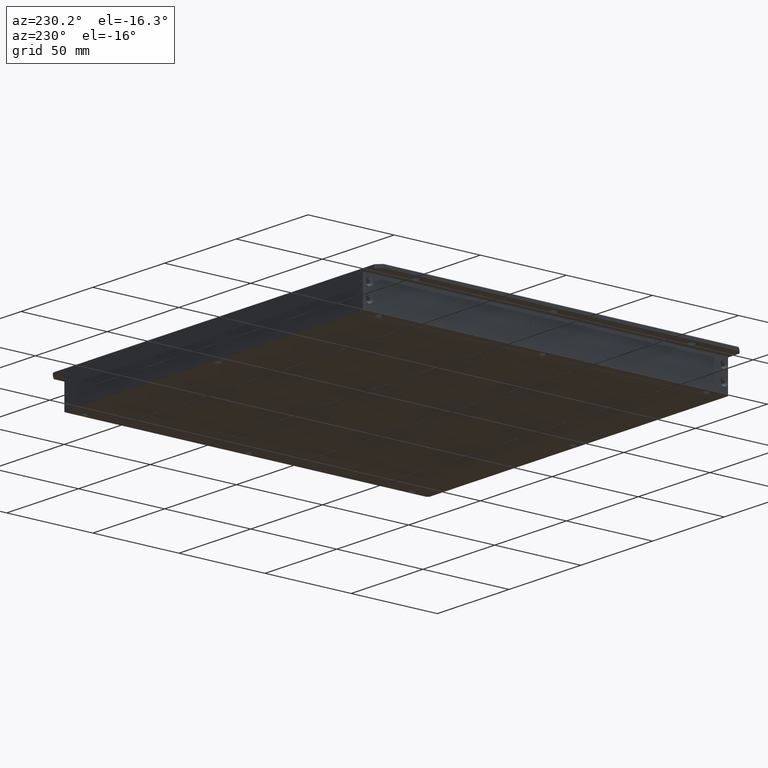
[diagram: clean part render]
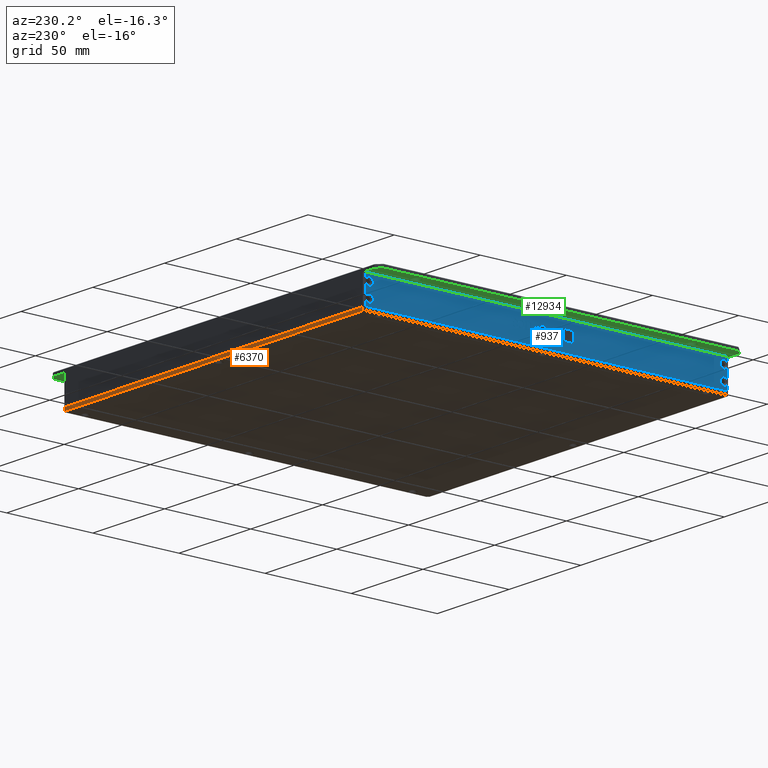
[diagram: same view with three faces highlighted in distinct colors, each labeled with its STEP entity id]
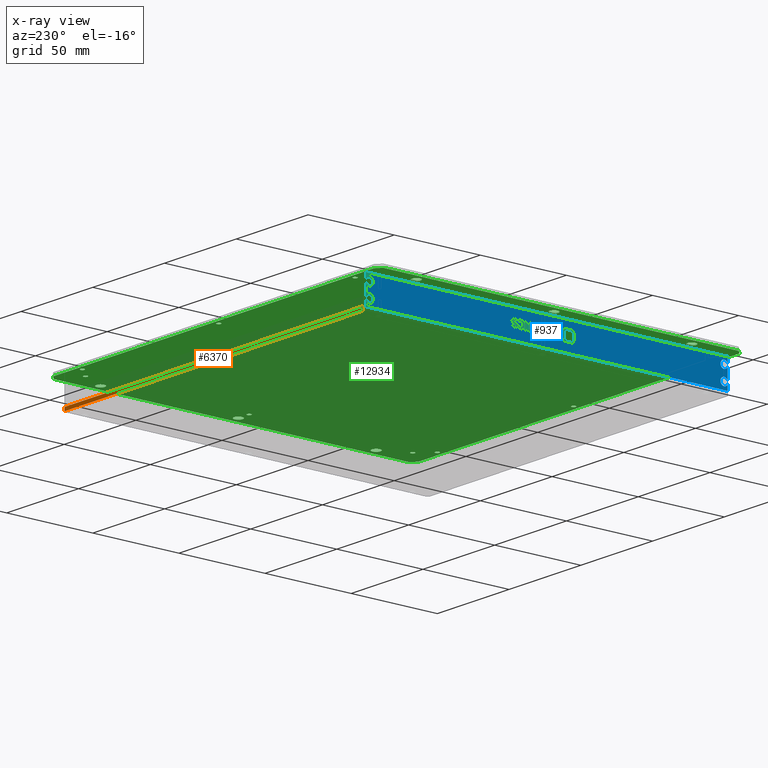
[diagram: x-ray of the same camera — body ghosted, the three highlighted faces saturated]
A machine part, auxiliary view with three faces highlighted in distinct colors.
The next image is the same camera in x-ray (body ghosted, the three faces saturated) — at least one of them is partly hidden behind the body in this view.
Their STEP definitions:

[orange] entity #6370 — the highlighted planar face has unit normal (0, -1, 0).
#1563 = ORIENTED_EDGE ( 'NONE', *, *, #12648, .F. ) ;
#1631 = PLANE ( 'NONE',  #19408 ) ;
#2039 = LINE ( 'NONE', #12944, #2549 ) ;
#2355 = CARTESIAN_POINT ( 'NONE',  ( 123.6657505824761400, 72.62124601721919200, -16.00000000002364700 ) ) ;
#2549 = VECTOR ( 'NONE', #4256, 1000.000000000000000 ) ;
#2594 = CARTESIAN_POINT ( 'NONE',  ( 122.6657505824761400, 72.62124601721917800, -18.00000000002365000 ) ) ;
#3230 = VERTEX_POINT ( 'NONE', #17954 ) ;
#3367 = ORIENTED_EDGE ( 'NONE', *, *, #15943, .F. ) ;
#3521 = DIRECTION ( 'NONE',  ( 0.0000000000000000000, -1.000000000000000000, 0.0000000000000000000 ) ) ;
#4256 = DIRECTION ( 'NONE',  ( -0.0000000000000000000, -0.0000000000000000000, 1.000000000000000000 ) ) ;
#5573 = VERTEX_POINT ( 'NONE', #11850 ) ;
#5838 = LINE ( 'NONE', #17126, #17449 ) ;
#6370 = ADVANCED_FACE ( 'NONE', ( #18716 ), #1631, .F. ) ;
#6856 = DIRECTION ( 'NONE',  ( 1.000000000000000000, -0.0000000000000000000, -0.0000000000000000000 ) ) ;
#6998 = LINE ( 'NONE', #2355, #11612 ) ;
#7206 = ORIENTED_EDGE ( 'NONE', *, *, #16397, .F. ) ;
#7208 = ORIENTED_EDGE ( 'NONE', *, *, #19060, .T. ) ;
#11586 = DIRECTION ( 'NONE',  ( 0.0000000000000000000, 0.0000000000000000000, -1.000000000000000000 ) ) ;
#11612 = VECTOR ( 'NONE', #12825, 1000.000000000000000 ) ;
#11850 = CARTESIAN_POINT ( 'NONE',  ( -85.33424941752389300, 72.62124601721917800, -18.00000000002365000 ) ) ;
#12462 = LINE ( 'NONE', #20084, #20497 ) ;
#12648 = EDGE_CURVE ( 'NONE', #5573, #18581, #5838, .T. ) ;
#12680 = EDGE_LOOP ( 'NONE', ( #7206, #1563, #3367, #7208 ) ) ;
#12825 = DIRECTION ( 'NONE',  ( 1.000000000000000000, 0.0000000000000000000, 0.0000000000000000000 ) ) ;
#12944 = CARTESIAN_POINT ( 'NONE',  ( 122.6657505824761100, 72.62124601721919200, -18.00000000002365000 ) ) ;
#13529 = CARTESIAN_POINT ( 'NONE',  ( -85.33424941752390700, 72.62124601721917800, -16.00000000002364700 ) ) ;
#13932 = CARTESIAN_POINT ( 'NONE',  ( -86.33424941752385000, 72.62124601721919200, -18.00000000002365000 ) ) ;
#15442 = VERTEX_POINT ( 'NONE', #13529 ) ;
#15647 = DIRECTION ( 'NONE',  ( -1.000000000000000000, 0.0000000000000000000, 0.0000000000000000000 ) ) ;
#15943 = EDGE_CURVE ( 'NONE', #15442, #5573, #12462, .T. ) ;
#16397 = EDGE_CURVE ( 'NONE', #18581, #3230, #2039, .T. ) ;
#17126 = CARTESIAN_POINT ( 'NONE',  ( -86.33424941752385000, 72.62124601721919200, -18.00000000002365000 ) ) ;
#17449 = VECTOR ( 'NONE', #6856, 1000.000000000000000 ) ;
#17954 = CARTESIAN_POINT ( 'NONE',  ( 122.6657505824761200, 72.62124601721919200, -16.00000000002364700 ) ) ;
#18581 = VERTEX_POINT ( 'NONE', #2594 ) ;
#18716 = FACE_OUTER_BOUND ( 'NONE', #12680, .T. ) ;
#19060 = EDGE_CURVE ( 'NONE', #15442, #3230, #6998, .T. ) ;
#19408 = AXIS2_PLACEMENT_3D ( 'NONE', #13932, #3521, #15647 ) ;
#20084 = CARTESIAN_POINT ( 'NONE',  ( -85.33424941752389300, 72.62124601721919200, -18.00000000002365000 ) ) ;
#20497 = VECTOR ( 'NONE', #11586, 1000.000000000000000 ) ;

[blue] entity #937 — the highlighted planar face has unit normal (-1, 0, -0).
#51 = CARTESIAN_POINT ( 'NONE',  ( -86.33424941752386400, -39.68790677265576500, -6.123621645455971300 ) ) ;
#54 = LINE ( 'NONE', #15138, #12834 ) ;
#80 = CARTESIAN_POINT ( 'NONE',  ( -86.33424941752386400, -15.36632754063850100, -8.318970482665344300 ) ) ;
#98 = LINE ( 'NONE', #16803, #8773 ) ;
#121 = CARTESIAN_POINT ( 'NONE',  ( -86.33424941752386400, -39.50867475534915500, -8.964021861789111900 ) ) ;
#124 = ORIENTED_EDGE ( 'NONE', *, *, #15602, .F. ) ;
#138 = CARTESIAN_POINT ( 'NONE',  ( -86.33424941752386400, -48.60731158441612400, -10.73174529393650700 ) ) ;
#180 = VERTEX_POINT ( 'NONE', #6992 ) ;
#230 = CARTESIAN_POINT ( 'NONE',  ( -86.33424941752386400, -19.47968611283991400, -9.652393954812430000 ) ) ;
#323 = EDGE_CURVE ( 'NONE', #11034, #17033, #6517, .T. ) ;
#329 = CARTESIAN_POINT ( 'NONE',  ( -86.33424941752386400, -40.19693868179609100, -9.168673024579778300 ) ) ;
#371 = EDGE_CURVE ( 'NONE', #21421, #1949, #17533, .T. ) ;
#405 = CARTESIAN_POINT ( 'NONE',  ( -86.33424941752386400, -40.19693868179609100, -9.726812559463539300 ) ) ;
#421 = B_SPLINE_CURVE_WITH_KNOTS ( 'NONE', 3,
 ( #17543, #5451, #8925, #21023 ),
 .UNSPECIFIED., .F., .F.,
 ( 4, 4 ),
 ( 11.00000000000000000, 12.00000000000000000 ),
 .UNSPECIFIED. ) ;
#425 = EDGE_CURVE ( 'NONE', #1929, #8804, #9848, .T. ) ;
#465 = VERTEX_POINT ( 'NONE', #10182 ) ;
#532 = CARTESIAN_POINT ( 'NONE',  ( -86.33424941752386400, -37.12489974182842900, -7.159370698998457300 ) ) ;
#555 = B_SPLINE_CURVE_WITH_KNOTS ( 'NONE', 3,
 ( #13970, #19172, #21840, #8409 ),
 .UNSPECIFIED., .F., .F.,
 ( 4, 4 ),
 ( 1.000000000000000000, 2.000000000000000000 ),
 .UNSPECIFIED. ) ;
#684 = VERTEX_POINT ( 'NONE', #12645 ) ;
#690 = CARTESIAN_POINT ( 'NONE',  ( -86.33424941752386400, -48.97701606706151300, -5.136023614035759800 ) ) ;
#739 = VECTOR ( 'NONE', #18192, 1000.000000000000000 ) ;
#759 = CARTESIAN_POINT ( 'NONE',  ( -86.33424941752386400, -16.78352602630628400, -6.266347443184556300 ) ) ;
#761 = ORIENTED_EDGE ( 'NONE', *, *, #7931, .F. ) ;
#783 = CARTESIAN_POINT ( 'NONE',  ( -86.33424941752386400, -16.28022694572218000, -6.340766047835683300 ) ) ;
#806 = CARTESIAN_POINT ( 'NONE',  ( -86.33424941752386400, -17.17703603171472100, -6.408802824471706600 ) ) ;
#818 = EDGE_CURVE ( 'NONE', #17706, #17711, #98, .T. ) ;
#830 = EDGE_CURVE ( 'NONE', #12359, #3155, #20392, .T. ) ;
#880 = FACE_BOUND ( 'NONE', #13896, .T. ) ;
#898 = CARTESIAN_POINT ( 'NONE',  ( -86.33424941752386400, -38.76805820586305600, -9.336114885044919400 ) ) ;
#902 = CARTESIAN_POINT ( 'NONE',  ( -86.33424941752386400, -37.95799871424621600, -7.364021861789178800 ) ) ;
#937 = ADVANCED_FACE ( 'NONE', ( #15235, #19842, #6075, #10687, #19309, #14721, #10134, #5526, #880, #18762 ), #8217, .T. ) ;
#946 = B_SPLINE_CURVE_WITH_KNOTS ( 'NONE', 3,
 ( #5426, #3648, #7177, #19248 ),
 .UNSPECIFIED., .F., .F.,
 ( 4, 4 ),
 ( 4.000000000000000000, 5.000000000000000000 ),
 .UNSPECIFIED. ) ;
#1016 = VERTEX_POINT ( 'NONE', #7394 ) ;
#1018 = VECTOR ( 'NONE', #2285, 1000.000000000000000 ) ;
#1045 = ORIENTED_EDGE ( 'NONE', *, *, #12708, .F. ) ;
#1046 = EDGE_CURVE ( 'NONE', #21958, #1791, #5521, .T. ) ;
#1076 = ORIENTED_EDGE ( 'NONE', *, *, #20342, .F. ) ;
#1092 = DIRECTION ( 'NONE',  ( 1.000000000000000000, -0.0000000000000000000, 1.130331070474788800E-016 ) ) ;
#1100 = CARTESIAN_POINT ( 'NONE',  ( -86.33424941752386400, -43.01153568396431800, -5.853883536039186100 ) ) ;
#1105 = VERTEX_POINT ( 'NONE', #5816 ) ;
#1108 = B_SPLINE_CURVE_WITH_KNOTS ( 'NONE', 3,
 ( #1723, #1277, #2229, #2463 ),
 .UNSPECIFIED., .F., .F.,
 ( 4, 4 ),
 ( 11.00000000000000000, 12.00000000000000000 ),
 .UNSPECIFIED. ) ;
#1156 = LINE ( 'NONE', #4509, #19041 ) ;
#1229 = CARTESIAN_POINT ( 'NONE',  ( -86.33424941752386400, -19.28282294355899400, -7.624486978068219400 ) ) ;
#1277 = CARTESIAN_POINT ( 'NONE',  ( -86.33424941752386400, -13.15605171586876100, -7.419835815277569900 ) ) ;
#1279 = LINE ( 'NONE', #11367, #739 ) ;
#1287 = AXIS2_PLACEMENT_3D ( 'NONE', #21210, #17587, #7985 ) ;
#1318 = CARTESIAN_POINT ( 'NONE',  ( -86.33424941752386400, -16.78352602630628400, -6.266347443184556300 ) ) ;
#1352 = ORIENTED_EDGE ( 'NONE', *, *, #13521, .F. ) ;
#1359 = ORIENTED_EDGE ( 'NONE', *, *, #16792, .F. ) ;
#1362 = VECTOR ( 'NONE', #5343, 1000.000000000000000 ) ;
#1391 = ORIENTED_EDGE ( 'NONE', *, *, #10111, .T. ) ;
#1404 = CARTESIAN_POINT ( 'NONE',  ( -86.33424941752386400, -41.38882618855645000, -9.664616777960020500 ) ) ;
#1425 = CARTESIAN_POINT ( 'NONE',  ( -86.33424941752386400, -27.77000520424055500, -5.670998605975221100 ) ) ;
#1466 = ORIENTED_EDGE ( 'NONE', *, *, #425, .F. ) ;
#1593 = EDGE_CURVE ( 'NONE', #11140, #16938, #11711, .T. ) ;
#1638 = AXIS2_PLACEMENT_3D ( 'NONE', #3671, #15787, #5443 ) ;
#1677 = DIRECTION ( 'NONE',  ( -0.0000000000000000000, -0.0000000000000000000, -1.000000000000000000 ) ) ;
#1701 = DIRECTION ( 'NONE',  ( -0.0000000000000000000, 4.032059971189313800E-015, 1.000000000000000000 ) ) ;
#1723 = CARTESIAN_POINT ( 'NONE',  ( -86.33424941752386400, -13.15605171586875800, -6.787277675742680900 ) ) ;
#1727 = CARTESIAN_POINT ( 'NONE',  ( -86.33424941752386400, -25.21857199710132800, -9.670998605975231800 ) ) ;
#1731 = CARTESIAN_POINT ( 'NONE',  ( -86.33424941752386400, -48.60731158441611700, -4.766264760138815500 ) ) ;
#1765 = VERTEX_POINT ( 'NONE', #20529 ) ;
#1791 = VERTEX_POINT ( 'NONE', #19186 ) ;
#1794 = CARTESIAN_POINT ( 'NONE',  ( -86.33424941752159000, 71.62124601721924900, -4.916515139044523900 ) ) ;
#1846 = B_SPLINE_CURVE_WITH_KNOTS ( 'NONE', 3,
 ( #21629, #9525, #12837, #11306 ),
 .UNSPECIFIED., .F., .F.,
 ( 4, 4 ),
 ( 3.000000000000000000, 4.000000000000000000 ),
 .UNSPECIFIED. ) ;
#1905 = EDGE_CURVE ( 'NONE', #20223, #20444, #12527, .T. ) ;
#1927 = CARTESIAN_POINT ( 'NONE',  ( -86.33424941752386400, -47.88935382910831600, -10.73174529393650700 ) ) ;
#1929 = VERTEX_POINT ( 'NONE', #13398 ) ;
#1949 = VERTEX_POINT ( 'NONE', #13253 ) ;
#1957 = DIRECTION ( 'NONE',  ( -0.0000000000000000000, 1.000000000000000000, -5.631151171140671400E-015 ) ) ;
#1966 = ORIENTED_EDGE ( 'NONE', *, *, #7910, .F. ) ;
#1984 = CARTESIAN_POINT ( 'NONE',  ( -86.33424941752159000, -138.3787539827808100, -4.916515139024154400 ) ) ;
#1987 = ORIENTED_EDGE ( 'NONE', *, *, #5909, .F. ) ;
#2009 = ORIENTED_EDGE ( 'NONE', *, *, #11149, .F. ) ;
#2018 = LINE ( 'NONE', #11869, #10742 ) ;
#2043 = VERTEX_POINT ( 'NONE', #5689 ) ;
#2057 = CARTESIAN_POINT ( 'NONE',  ( -86.33424941752386400, -40.82170882782121200, -6.198040250107151600 ) ) ;
#2073 = CARTESIAN_POINT ( 'NONE',  ( -86.33424941752386400, -29.10640325724212500, -7.643091629231007800 ) ) ;
#2098 = CARTESIAN_POINT ( 'NONE',  ( -86.33424941752386400, -18.34555955794549200, -9.726812559463615700 ) ) ;
#2133 = B_SPLINE_CURVE_WITH_KNOTS ( 'NONE', 3,
 ( #19308, #8881, #3782, #15904 ),
 .UNSPECIFIED., .F., .F.,
 ( 4, 4 ),
 ( 3.000000000000000000, 4.000000000000000000 ),
 .UNSPECIFIED. ) ;
#2146 = LINE ( 'NONE', #16884, #19495 ) ;
#2167 = ORIENTED_EDGE ( 'NONE', *, *, #20464, .T. ) ;
#2175 = CARTESIAN_POINT ( 'NONE',  ( -86.33424941752386400, -41.18623019072011000, -8.604151661680912600 ) ) ;
#2226 = VECTOR ( 'NONE', #5722, 1000.000000000000000 ) ;
#2229 = CARTESIAN_POINT ( 'NONE',  ( -86.33424941752386400, -13.66540812473827200, -7.841360964006633500 ) ) ;
#2269 = VERTEX_POINT ( 'NONE', #12022 ) ;
#2285 = DIRECTION ( 'NONE',  ( -0.0000000000000000000, -1.000000000000000000, 3.667814416331344700E-015 ) ) ;
#2371 = CIRCLE ( 'NONE', #15449, 2.200000000024779500 ) ;
#2375 = B_SPLINE_CURVE_WITH_KNOTS ( 'NONE', 3,
 ( #13081, #898, #16497, #6170 ),
 .UNSPECIFIED., .F., .F.,
 ( 4, 4 ),
 ( 13.00000000000000000, 14.00000000000000000 ),
 .UNSPECIFIED. ) ;
#2384 = CARTESIAN_POINT ( 'NONE',  ( -86.33424941752386400, -43.38134889043112000, -10.73174529393651600 ) ) ;
#2440 = DIRECTION ( 'NONE',  ( -1.130331070474788800E-016, 4.782939934548519700E-017, 1.000000000000000000 ) ) ;
#2456 = ORIENTED_EDGE ( 'NONE', *, *, #5072, .F. ) ;
#2463 = CARTESIAN_POINT ( 'NONE',  ( -86.33424941752386400, -14.68347194301823000, -8.052393954812457000 ) ) ;
#2474 = CARTESIAN_POINT ( 'NONE',  ( -86.33424941752386400, -25.21857199710132800, -9.670998605975231800 ) ) ;
#2491 = CARTESIAN_POINT ( 'NONE',  ( -86.33424941752386400, -38.49601926589564000, -7.977975350161245600 ) ) ;
#2497 = CARTESIAN_POINT ( 'NONE',  ( -86.33424941752386400, -15.88693327346724100, -5.807612992129906000 ) ) ;
#2518 = CARTESIAN_POINT ( 'NONE',  ( -86.33424941752386400, -17.62257416043322400, -6.111128405867085600 ) ) ;
#2553 = LINE ( 'NONE', #20718, #15879 ) ;
#2578 = VERTEX_POINT ( 'NONE', #3470 ) ;
#2604 = CARTESIAN_POINT ( 'NONE',  ( -86.33424941752386400, -20.13322856822120200, -7.661696280393862900 ) ) ;
#2615 = LINE ( 'NONE', #11826, #7299 ) ;
#2640 = EDGE_CURVE ( 'NONE', #20201, #5262, #20106, .T. ) ;
#2643 = CARTESIAN_POINT ( 'NONE',  ( -86.33424941752386400, -20.61922099656077000, -5.670998605975246000 ) ) ;
#2682 = LINE ( 'NONE', #4082, #20585 ) ;
#2766 = CARTESIAN_POINT ( 'NONE',  ( -86.33424941752386400, -36.27449411716632000, -6.136114885044947600 ) ) ;
#2824 = LINE ( 'NONE', #18313, #12130 ) ;
#2837 = VERTEX_POINT ( 'NONE', #18309 ) ;
#2842 = EDGE_CURVE ( 'NONE', #2269, #14924, #21016, .T. ) ;
#2859 = CARTESIAN_POINT ( 'NONE',  ( -86.33424941752386400, -14.42311499331584700, -9.137575133828141500 ) ) ;
#2881 = CARTESIAN_POINT ( 'NONE',  ( -86.33424941752386400, -21.92100574507339800, -9.112859071091540000 ) ) ;
#2914 = VERTEX_POINT ( 'NONE', #16498 ) ;
#2930 = CARTESIAN_POINT ( 'NONE',  ( -86.33424941752386400, -14.24377480943228800, -7.258505366386294200 ) ) ;
#2942 = CARTESIAN_POINT ( 'NONE',  ( -86.33424941752386400, -18.94166556119027300, -9.125081894239162500 ) ) ;
#2944 = B_SPLINE_CURVE_WITH_KNOTS ( 'NONE', 3,
 ( #8685, #19040, #51, #12206 ),
 .UNSPECIFIED., .F., .F.,
 ( 4, 4 ),
 ( 4.000000000000000000, 5.000000000000000000 ),
 .UNSPECIFIED. ) ;
#2950 = DIRECTION ( 'NONE',  ( -0.0000000000000000000, -1.000000000000000000, 4.252855617981530800E-015 ) ) ;
#3051 = EDGE_CURVE ( 'NONE', #5026, #13976, #1108, .T. ) ;
#3074 = VERTEX_POINT ( 'NONE', #2766 ) ;
#3107 = B_SPLINE_CURVE_WITH_KNOTS ( 'NONE', 3,
 ( #15630, #8758, #121, #12286 ),
 .UNSPECIFIED., .F., .F.,
 ( 4, 4 ),
 ( 1.000000000000000000, 2.000000000000000000 ),
 .UNSPECIFIED. ) ;
#3137 = CARTESIAN_POINT ( 'NONE',  ( -86.33424941752386400, -42.00797167260185500, -8.982626512951869200 ) ) ;
#3141 = CARTESIAN_POINT ( 'NONE',  ( -86.33424941752159000, 71.62124601721924900, -3.083484861002817800 ) ) ;
#3155 = VERTEX_POINT ( 'NONE', #20925 ) ;
#3209 = ORIENTED_EDGE ( 'NONE', *, *, #5831, .F. ) ;
#3284 = CARTESIAN_POINT ( 'NONE',  ( -86.33424941752386400, -13.26021612906481600, -8.480300931556678600 ) ) ;
#3290 = CARTESIAN_POINT ( 'NONE',  ( -86.33424941752386400, -44.09910007047812300, -4.766264760138822600 ) ) ;
#3438 = DIRECTION ( 'NONE',  ( -0.0000000000000000000, 1.000000000000000000, -4.253419582390956600E-015 ) ) ;
#3470 = CARTESIAN_POINT ( 'NONE',  ( -86.33424941752159000, -138.3787539827807800, -12.91651513902421700 ) ) ;
#3527 = EDGE_CURVE ( 'NONE', #9874, #16202, #19997, .T. ) ;
#3543 = ORIENTED_EDGE ( 'NONE', *, *, #818, .F. ) ;
#3648 = CARTESIAN_POINT ( 'NONE',  ( -86.33424941752386400, -35.40094084512757200, -6.452393954812392500 ) ) ;
#3671 = CARTESIAN_POINT ( 'NONE',  ( -86.33424941751931700, -136.3787539827808600, -4.000000000023662800 ) ) ;
#3702 = CARTESIAN_POINT ( 'NONE',  ( -86.33424941752386400, -20.07546761635504500, -8.964021861789177600 ) ) ;
#3704 = CARTESIAN_POINT ( 'NONE',  ( -86.33424941751931700, -136.3787539827808600, -12.00000000002366100 ) ) ;
#3755 = DIRECTION ( 'NONE',  ( 1.130331070474788800E-016, -4.782939934548519700E-017, -1.000000000000000000 ) ) ;
#3776 = CARTESIAN_POINT ( 'NONE',  ( -86.33424941752386400, -35.42398032592809900, -9.670998605975198000 ) ) ;
#3782 = CARTESIAN_POINT ( 'NONE',  ( -86.33424941752386400, -37.12489974182842200, -6.477110017549014400 ) ) ;
#3806 = CARTESIAN_POINT ( 'NONE',  ( -86.33424941752386400, -41.18623019072009600, -6.706477243076300000 ) ) ;
#3932 = EDGE_CURVE ( 'NONE', #22440, #16891, #2682, .T. ) ;
#3955 = CARTESIAN_POINT ( 'NONE',  ( -86.33424941751931700, 67.42124601719444900, -12.00000000002367200 ) ) ;
#3979 = VERTEX_POINT ( 'NONE', #10085 ) ;
#4005 = DIRECTION ( 'NONE',  ( 1.130331070474788800E-016, -4.782939934548519700E-017, -1.000000000000000000 ) ) ;
#4050 = CARTESIAN_POINT ( 'NONE',  ( -86.33424941752386400, -39.27709011500302000, -5.596580001323996400 ) ) ;
#4073 = CARTESIAN_POINT ( 'NONE',  ( -86.33424941752386400, -14.68347194301822300, -5.596580001324083400 ) ) ;
#4082 = CARTESIAN_POINT ( 'NONE',  ( -86.33424941752386400, -38.51343408471664300, -8.554719536207718600 ) ) ;
#4125 = ORIENTED_EDGE ( 'NONE', *, *, #21041, .F. ) ;
#4139 = B_SPLINE_CURVE_WITH_KNOTS ( 'NONE', 3,
 ( #7652, #4050, #9379, #21474 ),
 .UNSPECIFIED., .F., .F.,
 ( 4, 4 ),
 ( 10.00000000000000000, 11.00000000000000000 ),
 .UNSPECIFIED. ) ;
#4145 = EDGE_CURVE ( 'NONE', #16332, #7618, #21114, .T. ) ;
#4167 = ORIENTED_EDGE ( 'NONE', *, *, #21205, .F. ) ;
#4241 = CIRCLE ( 'NONE', #16510, 2.200000000007584800 ) ;
#4280 = CARTESIAN_POINT ( 'NONE',  ( -86.33424941752386400, -14.68347194301822300, -5.596580001324083400 ) ) ;
#4332 = LINE ( 'NONE', #12968, #4874 ) ;
#4350 = CARTESIAN_POINT ( 'NONE',  ( -86.33424941752386400, -13.15605171586875800, -6.787277675742680900 ) ) ;
#4351 = CARTESIAN_POINT ( 'NONE',  ( -86.33424941752386400, -26.97162770288842600, -9.670998605975224600 ) ) ;
#4381 = ORIENTED_EDGE ( 'NONE', *, *, #18506, .T. ) ;
#4398 = CARTESIAN_POINT ( 'NONE',  ( -86.33424941752386400, -36.29180076941074200, -5.596580001324007000 ) ) ;
#4427 = CARTESIAN_POINT ( 'NONE',  ( -86.33424941752386400, -23.15323938487889800, -5.670998605975235300 ) ) ;
#4457 = ORIENTED_EDGE ( 'NONE', *, *, #15391, .F. ) ;
#4460 = CARTESIAN_POINT ( 'NONE',  ( -86.33424941752386400, -21.92100574507339800, -9.670998605975246000 ) ) ;
#4509 = CARTESIAN_POINT ( 'NONE',  ( -86.33424941752386400, -33.37875398278083600, -2.364948514799181100E-011 ) ) ;
#4572 = CARTESIAN_POINT ( 'NONE',  ( -86.33424941752386400, -16.15864771370491200, -9.348337708192662600 ) ) ;
#4595 = ORIENTED_EDGE ( 'NONE', *, *, #8759, .F. ) ;
#4635 = VERTEX_POINT ( 'NONE', #13742 ) ;
#4653 = DIRECTION ( 'NONE',  ( -0.0000000000000000000, 1.000000000000000000, -5.631151171138625800E-015 ) ) ;
#4655 = CARTESIAN_POINT ( 'NONE',  ( -86.33424941752386400, -20.61922099656077000, -5.670998605975246000 ) ) ;
#4676 = ORIENTED_EDGE ( 'NONE', *, *, #21786, .F. ) ;
#4709 = VERTEX_POINT ( 'NONE', #10948 ) ;
#4713 = EDGE_CURVE ( 'NONE', #19976, #5588, #16186, .T. ) ;
#4766 = EDGE_CURVE ( 'NONE', #21271, #10387, #7023, .T. ) ;
#4865 = B_SPLINE_CURVE_WITH_KNOTS ( 'NONE', 3,
 ( #5873, #19683, #2384, #14549 ),
 .UNSPECIFIED., .F., .F.,
 ( 4, 4 ),
 ( 3.000000000000000000, 4.000000000000000000 ),
 .UNSPECIFIED. ) ;
#4874 = VECTOR ( 'NONE', #7712, 1000.000000000000000 ) ;
#4878 = VERTEX_POINT ( 'NONE', #12668 ) ;
#4988 = ORIENTED_EDGE ( 'NONE', *, *, #1593, .T. ) ;
#5026 = VERTEX_POINT ( 'NONE', #4350 ) ;
#5048 = VERTEX_POINT ( 'NONE', #16596 ) ;
#5053 = B_SPLINE_CURVE_WITH_KNOTS ( 'NONE', 3,
 ( #11425, #21762, #16592, #6261 ),
 .UNSPECIFIED., .F., .F.,
 ( 4, 4 ),
 ( 2.000000000000000000, 3.000000000000000000 ),
 .UNSPECIFIED. ) ;
#5058 = CARTESIAN_POINT ( 'NONE',  ( -86.33424941752386400, -43.38134889043110600, -4.766264760138829700 ) ) ;
#5072 = EDGE_CURVE ( 'NONE', #18090, #4878, #10459, .T. ) ;
#5212 = B_SPLINE_CURVE_WITH_KNOTS ( 'NONE', 3,
 ( #20478, #1404, #3137, #22249 ),
 .UNSPECIFIED., .F., .F.,
 ( 4, 4 ),
 ( 12.00000000000000000, 13.00000000000000000 ),
 .UNSPECIFIED. ) ;
#5242 = ORIENTED_EDGE ( 'NONE', *, *, #5737, .F. ) ;
#5249 = EDGE_CURVE ( 'NONE', #12157, #3074, #946, .T. ) ;
#5262 = VERTEX_POINT ( 'NONE', #17515 ) ;
#5295 = CARTESIAN_POINT ( 'NONE',  ( -86.33424941752386400, -21.43501331673369800, -5.670998605975242400 ) ) ;
#5343 = DIRECTION ( 'NONE',  ( -0.0000000000000000000, 1.000000000000000000, -4.252855617981548900E-015 ) ) ;
#5353 = CARTESIAN_POINT ( 'NONE',  ( -86.33424941752386400, -138.3787539827808100, -8.000000000023661100 ) ) ;
#5356 = VERTEX_POINT ( 'NONE', #10957 ) ;
#5426 = CARTESIAN_POINT ( 'NONE',  ( -86.33424941752386400, -35.42398032592809200, -7.159370698998464500 ) ) ;
#5434 = DIRECTION ( 'NONE',  ( -0.0000000000000000000, -3.469446951953611000E-015, -1.000000000000000000 ) ) ;
#5443 = DIRECTION ( 'NONE',  ( 0.0000000000000000000, 1.000000000000000000, -1.971276677239575500E-015 ) ) ;
#5445 = CARTESIAN_POINT ( 'NONE',  ( -86.33424941752386400, -48.97701606706152000, -9.426635380003604700 ) ) ;
#5446 = ORIENTED_EDGE ( 'NONE', *, *, #5868, .T. ) ;
#5451 = CARTESIAN_POINT ( 'NONE',  ( -86.33424941752386400, -42.00797167260184000, -6.340766047835593600 ) ) ;
#5471 = EDGE_CURVE ( 'NONE', #10544, #4635, #10972, .T. ) ;
#5476 = DIRECTION ( 'NONE',  ( 0.0000000000000000000, 1.000000000000000000, -1.577021341791660400E-015 ) ) ;
#5515 = VECTOR ( 'NONE', #2440, 1000.000000000000000 ) ;
#5519 = DIRECTION ( 'NONE',  ( 1.000000000000000000, -0.0000000000000000000, 1.130331070474788800E-016 ) ) ;
#5521 = B_SPLINE_CURVE_WITH_KNOTS ( 'NONE', 3,
 ( #5660, #7542, #5814, #5582 ),
 .UNSPECIFIED., .F., .F.,
 ( 4, 4 ),
 ( 7.000000000000000000, 8.000000000000000000 ),
 .UNSPECIFIED. ) ;
#5526 = FACE_BOUND ( 'NONE', #11009, .T. ) ;
#5570 = CARTESIAN_POINT ( 'NONE',  ( -86.33424941752386400, -16.19336918477044300, -8.629138140858978900 ) ) ;
#5582 = CARTESIAN_POINT ( 'NONE',  ( -86.33424941752386400, -18.31083808687994400, -5.596580001324069200 ) ) ;
#5588 = VERTEX_POINT ( 'NONE', #3141 ) ;
#5637 = VERTEX_POINT ( 'NONE', #22320 ) ;
#5660 = CARTESIAN_POINT ( 'NONE',  ( -86.33424941752386400, -20.13322856822120200, -7.661696280393862900 ) ) ;
#5689 = CARTESIAN_POINT ( 'NONE',  ( -86.33424941752386400, -40.38785268936740600, -7.419835815277476600 ) ) ;
#5722 = DIRECTION ( 'NONE',  ( -0.0000000000000000000, -1.000000000000000000, 4.164507539704090300E-015 ) ) ;
#5737 = EDGE_CURVE ( 'NONE', #2043, #20727, #20929, .T. ) ;
#5814 = CARTESIAN_POINT ( 'NONE',  ( -86.33424941752386400, -19.46800412257487900, -5.658775782827637700 ) ) ;
#5816 = CARTESIAN_POINT ( 'NONE',  ( -86.33424941752386400, -138.3787539827807500, -16.00000000002366100 ) ) ;
#5831 = EDGE_CURVE ( 'NONE', #4709, #6910, #22309, .T. ) ;
#5835 = EDGE_CURVE ( 'NONE', #14582, #13639, #18201, .T. ) ;
#5862 = CARTESIAN_POINT ( 'NONE',  ( -86.33424941752386400, -36.29180076941074200, -5.596580001324007000 ) ) ;
#5868 = EDGE_CURVE ( 'NONE', #1105, #2578, #22276, .T. ) ;
#5873 = CARTESIAN_POINT ( 'NONE',  ( -86.33424941752386400, -43.01153568396432500, -9.644137390418878300 ) ) ;
#5909 = EDGE_CURVE ( 'NONE', #17247, #11213, #1846, .T. ) ;
#5918 = LINE ( 'NONE', #2491, #15633 ) ;
#5935 = B_SPLINE_CURVE_WITH_KNOTS ( 'NONE', 3,
 ( #7383, #2175, #7456, #19521 ),
 .UNSPECIFIED., .F., .F.,
 ( 4, 4 ),
 ( 2.000000000000000000, 3.000000000000000000 ),
 .UNSPECIFIED. ) ;
#5941 = CARTESIAN_POINT ( 'NONE',  ( -86.33424941752386400, 71.62124601721924900, -8.000000000023671700 ) ) ;
#6001 = ORIENTED_EDGE ( 'NONE', *, *, #13979, .F. ) ;
#6017 = VERTEX_POINT ( 'NONE', #8106 ) ;
#6022 = CARTESIAN_POINT ( 'NONE',  ( -86.33424941752386400, -32.14372072614436600, -9.677110017549013700 ) ) ;
#6023 = ORIENTED_EDGE ( 'NONE', *, *, #6638, .F. ) ;
#6063 = ORIENTED_EDGE ( 'NONE', *, *, #14316, .F. ) ;
#6075 = FACE_BOUND ( 'NONE', #19039, .T. ) ;
#6098 = VERTEX_POINT ( 'NONE', #1318 ) ;
#6170 = CARTESIAN_POINT ( 'NONE',  ( -86.33424941752386400, -40.19693868179609100, -9.726812559463539300 ) ) ;
#6200 = CARTESIAN_POINT ( 'NONE',  ( -86.33424941752386400, -15.69007010418656200, -9.714319319874608300 ) ) ;
#6252 = EDGE_CURVE ( 'NONE', #21299, #11617, #5212, .T. ) ;
#6261 = CARTESIAN_POINT ( 'NONE',  ( -86.33424941752386400, -14.80494300845902700, -6.117510233882197400 ) ) ;
#6297 = ORIENTED_EDGE ( 'NONE', *, *, #12815, .F. ) ;
#6354 = CARTESIAN_POINT ( 'NONE',  ( -86.33424941752386400, -25.61781483106563000, -8.368673024579862800 ) ) ;
#6362 = DIRECTION ( 'NONE',  ( -0.0000000000000000000, 1.036015409263988700E-014, 1.000000000000000000 ) ) ;
#6466 = EDGE_CURVE ( 'NONE', #6776, #20223, #17678, .T. ) ;
#6487 = B_SPLINE_CURVE_WITH_KNOTS ( 'NONE', 3,
 ( #6354, #16679, #9826, #21923 ),
 .UNSPECIFIED., .F., .F.,
 ( 4, 4 ),
 ( 5.000000000000000000, 6.000000000000000000 ),
 .UNSPECIFIED. ) ;
#6517 = B_SPLINE_CURVE_WITH_KNOTS ( 'NONE', 3,
 ( #8712, #14020, #21961, #13874 ),
 .UNSPECIFIED., .F., .F.,
 ( 4, 4 ),
 ( 6.000000000000000000, 7.000000000000000000 ),
 .UNSPECIFIED. ) ;
#6524 = CIRCLE ( 'NONE', #18848, 2.200000000024779500 ) ;
#6541 = DIRECTION ( 'NONE',  ( -0.0000000000000000000, -0.0000000000000000000, 1.000000000000000000 ) ) ;
#6547 = VECTOR ( 'NONE', #1957, 1000.000000000000000 ) ;
#6558 = ORIENTED_EDGE ( 'NONE', *, *, #20334, .F. ) ;
#6567 = CARTESIAN_POINT ( 'NONE',  ( -86.33424941751931700, -136.3787539827808600, -4.000000000023662800 ) ) ;
#6628 = LINE ( 'NONE', #17344, #19329 ) ;
#6638 = EDGE_CURVE ( 'NONE', #14924, #20985, #4332, .T. ) ;
#6668 = CARTESIAN_POINT ( 'NONE',  ( -86.33424941752386400, -30.96351520964901700, -5.596580001324024800 ) ) ;
#6687 = VERTEX_POINT ( 'NONE', #4427 ) ;
#6716 = EDGE_CURVE ( 'NONE', #17033, #21785, #15945, .T. ) ;
#6726 = CARTESIAN_POINT ( 'NONE',  ( -86.33424941752386400, -14.00656550710699700, -6.731463722254321900 ) ) ;
#6776 = VERTEX_POINT ( 'NONE', #6668 ) ;
#6800 = EDGE_CURVE ( 'NONE', #1765, #9874, #21552, .T. ) ;
#6826 = CARTESIAN_POINT ( 'NONE',  ( -86.33424941752386400, -43.01153568396431800, -5.853883536039186100 ) ) ;
#6843 = AXIS2_PLACEMENT_3D ( 'NONE', #8055, #20119, #9784 ) ;
#6865 = ORIENTED_EDGE ( 'NONE', *, *, #8640, .T. ) ;
#6884 = EDGE_CURVE ( 'NONE', #17763, #15185, #21102, .T. ) ;
#6910 = VERTEX_POINT ( 'NONE', #8850 ) ;
#6992 = CARTESIAN_POINT ( 'NONE',  ( -86.33424941752386400, -17.51246058552769500, -8.405882326905482300 ) ) ;
#6996 = CARTESIAN_POINT ( 'NONE',  ( -86.33424941752386400, -15.14631672398070900, -8.126812559463635600 ) ) ;
#7023 = CIRCLE ( 'NONE', #1638, 2.200000000007584800 ) ;
#7057 = DIRECTION ( 'NONE',  ( -0.0000000000000000000, 3.469446951953611000E-015, 1.000000000000000000 ) ) ;
#7081 = LINE ( 'NONE', #15559, #7612 ) ;
#7139 = VERTEX_POINT ( 'NONE', #11361 ) ;
#7152 = VECTOR ( 'NONE', #15649, 1000.000000000000000 ) ;
#7164 = CARTESIAN_POINT ( 'NONE',  ( -86.33424941752386400, -48.97701606706150600, -5.853883536039164800 ) ) ;
#7177 = CARTESIAN_POINT ( 'NONE',  ( -86.33424941752386400, -35.68433727563036200, -6.111128405867023400 ) ) ;
#7222 = EDGE_CURVE ( 'NONE', #20878, #20201, #14696, .T. ) ;
#7274 = CARTESIAN_POINT ( 'NONE',  ( -86.33424941752386400, -26.97162770288841600, -7.066347443184485000 ) ) ;
#7299 = VECTOR ( 'NONE', #22157, 1000.000000000000000 ) ;
#7321 = CARTESIAN_POINT ( 'NONE',  ( -86.33424941752386400, -20.61922099656078400, -9.670998605975249500 ) ) ;
#7332 = CARTESIAN_POINT ( 'NONE',  ( -86.33424941752386400, -47.88935382910831600, -10.73174529393650700 ) ) ;
#7348 = VECTOR ( 'NONE', #19260, 1000.000000000000000 ) ;
#7383 = CARTESIAN_POINT ( 'NONE',  ( -86.33424941752386400, -41.22095166178552700, -7.661696280393790000 ) ) ;
#7394 = CARTESIAN_POINT ( 'NONE',  ( -86.33424941752386400, -16.78352602630628700, -7.029138140858987200 ) ) ;
#7405 = ORIENTED_EDGE ( 'NONE', *, *, #7421, .F. ) ;
#7421 = EDGE_CURVE ( 'NONE', #180, #13832, #14670, .T. ) ;
#7435 = ORIENTED_EDGE ( 'NONE', *, *, #13233, .F. ) ;
#7456 = CARTESIAN_POINT ( 'NONE',  ( -86.33424941752386400, -40.84507280835071400, -9.106477243076318100 ) ) ;
#7464 = LINE ( 'NONE', #9998, #16095 ) ;
#7470 = VERTEX_POINT ( 'NONE', #11111 ) ;
#7542 = CARTESIAN_POINT ( 'NONE',  ( -86.33424941752386400, -20.07546761635503400, -6.346877459409475900 ) ) ;
#7600 = ORIENTED_EDGE ( 'NONE', *, *, #5471, .F. ) ;
#7612 = VECTOR ( 'NONE', #1701, 1000.000000000000000 ) ;
#7618 = VERTEX_POINT ( 'NONE', #7994 ) ;
#7652 = CARTESIAN_POINT ( 'NONE',  ( -86.33424941752386400, -40.14480239190976400, -5.596580001323993700 ) ) ;
#7661 = B_SPLINE_CURVE_WITH_KNOTS ( 'NONE', 3,
 ( #1229, #21988, #2942, #15087 ),
 .UNSPECIFIED., .F., .F.,
 ( 4, 4 ),
 ( 2.000000000000000000, 3.000000000000000000 ),
 .UNSPECIFIED. ) ;
#7673 = DIRECTION ( 'NONE',  ( 1.130331070474788800E-016, -4.782939934548519700E-017, -1.000000000000000000 ) ) ;
#7709 = EDGE_CURVE ( 'NONE', #6687, #11725, #2146, .T. ) ;
#7712 = DIRECTION ( 'NONE',  ( -0.0000000000000000000, -3.057094650286987300E-015, -1.000000000000000000 ) ) ;
#7810 = CARTESIAN_POINT ( 'NONE',  ( -86.33424941752386400, -35.10023776237980500, -5.534654636261845600 ) ) ;
#7910 = EDGE_CURVE ( 'NONE', #13175, #21958, #11910, .T. ) ;
#7931 = EDGE_CURVE ( 'NONE', #1949, #8538, #15728, .T. ) ;
#7945 = CARTESIAN_POINT ( 'NONE',  ( -86.33424941752386400, -43.01153568396433300, -9.644137390418885400 ) ) ;
#7957 = B_SPLINE_CURVE_WITH_KNOTS ( 'NONE', 3,
 ( #1927, #138, #15788, #5445 ),
 .UNSPECIFIED., .F., .F.,
 ( 4, 4 ),
 ( 1.000000000000000000, 2.000000000000000000 ),
 .UNSPECIFIED. ) ;
#7958 = LINE ( 'NONE', #8387, #21201 ) ;
#7970 = VERTEX_POINT ( 'NONE', #3776 ) ;
#7983 = VERTEX_POINT ( 'NONE', #10713 ) ;
#7985 = DIRECTION ( 'NONE',  ( 5.406305616234845000E-033, 1.000000000000000000, -4.782939934548519700E-017 ) ) ;
#7994 = CARTESIAN_POINT ( 'NONE',  ( -86.33424941752386400, -37.12489974182843600, -9.670998605975190900 ) ) ;
#8055 = CARTESIAN_POINT ( 'NONE',  ( -86.33424941751931700, 69.62124601721922100, -12.00000000002367200 ) ) ;
#8083 = EDGE_CURVE ( 'NONE', #1016, #17247, #22165, .T. ) ;
#8086 = CARTESIAN_POINT ( 'NONE',  ( -86.33424941752386400, -15.36027021235320000, -6.129733057029860700 ) ) ;
#8106 = CARTESIAN_POINT ( 'NONE',  ( -86.33424941752386400, -32.82062716205548000, -7.643091629230997200 ) ) ;
#8137 = ORIENTED_EDGE ( 'NONE', *, *, #15849, .F. ) ;
#8145 = CARTESIAN_POINT ( 'NONE',  ( -86.33424941752386400, -14.05859363041662600, -8.480300931556675100 ) ) ;
#8216 = CARTESIAN_POINT ( 'NONE',  ( -86.33424941752386400, -40.12749573966512200, -6.136114885044930700 ) ) ;
#8217 = PLANE ( 'NONE',  #1287 ) ;
#8231 = CARTESIAN_POINT ( 'NONE',  ( -86.33424941751931700, 69.62124601721922100, -4.000000000023672600 ) ) ;
#8258 = CARTESIAN_POINT ( 'NONE',  ( -86.33424941752386400, -34.59088135351052500, -7.401231164114729000 ) ) ;
#8280 = CARTESIAN_POINT ( 'NONE',  ( -86.33424941752386400, -28.58568935783713300, -9.670998605975221100 ) ) ;
#8317 = DIRECTION ( 'NONE',  ( 0.0000000000000000000, 1.000000000000000000, 0.0000000000000000000 ) ) ;
#8387 = CARTESIAN_POINT ( 'NONE',  ( -86.33424941752386400, -40.38785268936740600, -7.419835815277476600 ) ) ;
#8397 = VECTOR ( 'NONE', #11825, 1000.000000000000000 ) ;
#8409 = CARTESIAN_POINT ( 'NONE',  ( -86.33424941752386400, -30.96351520964901700, -5.596580001324024800 ) ) ;
#8446 = ORIENTED_EDGE ( 'NONE', *, *, #16480, .F. ) ;
#8465 = DIRECTION ( 'NONE',  ( -0.0000000000000000000, -0.0000000000000000000, 1.000000000000000000 ) ) ;
#8509 = ORIENTED_EDGE ( 'NONE', *, *, #18379, .F. ) ;
#8538 = VERTEX_POINT ( 'NONE', #16316 ) ;
#8640 = EDGE_CURVE ( 'NONE', #11394, #14582, #2371, .T. ) ;
#8685 = CARTESIAN_POINT ( 'NONE',  ( -86.33424941752386400, -39.27709011500302000, -6.750068373417054300 ) ) ;
#8696 = ORIENTED_EDGE ( 'NONE', *, *, #9243, .F. ) ;
#8712 = CARTESIAN_POINT ( 'NONE',  ( -86.33424941752386400, -13.26021612906481600, -8.480300931556678600 ) ) ;
#8722 = ORIENTED_EDGE ( 'NONE', *, *, #17037, .F. ) ;
#8758 = CARTESIAN_POINT ( 'NONE',  ( -86.33424941752386400, -39.78038919558725400, -9.168673024579781800 ) ) ;
#8759 = EDGE_CURVE ( 'NONE', #7470, #14395, #2615, .T. ) ;
#8762 = ORIENTED_EDGE ( 'NONE', *, *, #6252, .F. ) ;
#8773 = VECTOR ( 'NONE', #16499, 1000.000000000000000 ) ;
#8804 = VERTEX_POINT ( 'NONE', #6726 ) ;
#8838 = DIRECTION ( 'NONE',  ( -1.130331070474788800E-016, 4.782939934548519700E-017, 1.000000000000000000 ) ) ;
#8850 = CARTESIAN_POINT ( 'NONE',  ( -86.33424941752386400, -25.61781483106563000, -8.368673024579862800 ) ) ;
#8861 = VECTOR ( 'NONE', #18499, 1000.000000000000000 ) ;
#8881 = CARTESIAN_POINT ( 'NONE',  ( -86.33424941752386400, -36.84150331132551800, -6.136114885044944100 ) ) ;
#8925 = CARTESIAN_POINT ( 'NONE',  ( -86.33424941752386400, -41.37141136973565400, -5.646282543238543300 ) ) ;
#8972 = VERTEX_POINT ( 'NONE', #7332 ) ;
#8999 = CARTESIAN_POINT ( 'NONE',  ( -86.33424941752386400, -26.04604630753981800, -7.041360964006564400 ) ) ;
#9016 = VERTEX_POINT ( 'NONE', #3955 ) ;
#9029 = CARTESIAN_POINT ( 'NONE',  ( -86.33424941752386400, -17.51246058552769500, -8.405882326905482300 ) ) ;
#9231 = ORIENTED_EDGE ( 'NONE', *, *, #21910, .F. ) ;
#9234 = CARTESIAN_POINT ( 'NONE',  ( -86.33424941752159000, 71.62124601721924900, -11.08348486100282000 ) ) ;
#9243 = EDGE_CURVE ( 'NONE', #3155, #20357, #15478, .T. ) ;
#9258 = ORIENTED_EDGE ( 'NONE', *, *, #19224, .F. ) ;
#9290 = EDGE_LOOP ( 'NONE', ( #8509, #7405, #4676, #4457, #1987, #20689, #10160, #18235, #11278, #1966 ) ) ;
#9322 = CARTESIAN_POINT ( 'NONE',  ( -86.33424941752386400, -13.14469422533293000, -5.993659503757871000 ) ) ;
#9369 = VECTOR ( 'NONE', #11698, 1000.000000000000000 ) ;
#9374 = CARTESIAN_POINT ( 'NONE',  ( -86.33424941752386400, -48.97701606706152000, -9.426635380003604700 ) ) ;
#9379 = CARTESIAN_POINT ( 'NONE',  ( -86.33424941752386400, -38.72760390624186000, -5.894254419928676800 ) ) ;
#9452 = EDGE_CURVE ( 'NONE', #18036, #1105, #2553, .T. ) ;
#9477 = CARTESIAN_POINT ( 'NONE',  ( -86.33424941752386400, -32.76286621018965700, -8.982626512951903000 ) ) ;
#9525 = CARTESIAN_POINT ( 'NONE',  ( -86.33424941752386400, -18.87222261905929700, -6.185547010518265900 ) ) ;
#9531 = ORIENTED_EDGE ( 'NONE', *, *, #13978, .F. ) ;
#9681 = DIRECTION ( 'NONE',  ( 5.406305616234845000E-033, 1.000000000000000000, -4.782939934548519700E-017 ) ) ;
#9721 = EDGE_CURVE ( 'NONE', #2914, #2837, #4139, .T. ) ;
#9781 = CARTESIAN_POINT ( 'NONE',  ( -86.33424941752386400, -14.71808524750729100, -7.345417210626439300 ) ) ;
#9784 = DIRECTION ( 'NONE',  ( 0.0000000000000000000, 1.000000000000000000, -1.577021341779334800E-015 ) ) ;
#9826 = CARTESIAN_POINT ( 'NONE',  ( -86.33424941752386400, -26.05762013122848900, -9.670998605975228200 ) ) ;
#9838 = CARTESIAN_POINT ( 'NONE',  ( -86.33424941752386400, -34.59088135351053200, -9.670998605975199800 ) ) ;
#9848 = B_SPLINE_CURVE_WITH_KNOTS ( 'NONE', 3,
 ( #19755, #2930, #14717, #10110 ),
 .UNSPECIFIED., .F., .F.,
 ( 4, 4 ),
 ( 3.000000000000000000, 4.000000000000000000 ),
 .UNSPECIFIED. ) ;
#9853 = VERTEX_POINT ( 'NONE', #14886 ) ;
#9873 = ORIENTED_EDGE ( 'NONE', *, *, #323, .F. ) ;
#9874 = VERTEX_POINT ( 'NONE', #1100 ) ;
#9906 = CARTESIAN_POINT ( 'NONE',  ( -86.33424941752386400, -21.43501331673371300, -9.670998605975246000 ) ) ;
#9975 = DIRECTION ( 'NONE',  ( 0.0000000000000000000, 1.000000000000000000, -1.971276677224168200E-015 ) ) ;
#9986 = DIRECTION ( 'NONE',  ( -0.0000000000000000000, 1.000000000000000000, -3.998384077638535600E-015 ) ) ;
#9987 = DIRECTION ( 'NONE',  ( -0.0000000000000000000, 3.884341374355074700E-015, 1.000000000000000000 ) ) ;
#9998 = CARTESIAN_POINT ( 'NONE',  ( -86.33424941752386400, -39.27709011500302000, -6.750068373417054300 ) ) ;
#10085 = CARTESIAN_POINT ( 'NONE',  ( -86.33424941752386400, -38.49601926589564000, -7.977975350161245600 ) ) ;
#10110 = CARTESIAN_POINT ( 'NONE',  ( -86.33424941752386400, -14.00656550710699700, -6.731463722254321900 ) ) ;
#10111 = EDGE_CURVE ( 'NONE', #5048, #21313, #12722, .T. ) ;
#10134 = FACE_BOUND ( 'NONE', #18576, .T. ) ;
#10148 = LINE ( 'NONE', #21345, #19326 ) ;
#10160 = ORIENTED_EDGE ( 'NONE', *, *, #16518, .F. ) ;
#10182 = CARTESIAN_POINT ( 'NONE',  ( -86.33424941752386400, -40.38785268936740600, -7.977975350161238500 ) ) ;
#10375 = EDGE_CURVE ( 'NONE', #10387, #5048, #4241, .T. ) ;
#10387 = VERTEX_POINT ( 'NONE', #15159 ) ;
#10401 = DIRECTION ( 'NONE',  ( -5.406305616234845000E-033, -1.000000000000000000, 4.782939934548519700E-017 ) ) ;
#10405 = CARTESIAN_POINT ( 'NONE',  ( -86.33424941752386400, -34.53312040164435400, -6.136114885044951200 ) ) ;
#10459 = B_SPLINE_CURVE_WITH_KNOTS ( 'NONE', 3,
 ( #14948, #8086, #21914, #11582 ),
 .UNSPECIFIED., .F., .F.,
 ( 4, 4 ),
 ( 1.000000000000000000, 2.000000000000000000 ),
 .UNSPECIFIED. ) ;
#10510 = CIRCLE ( 'NONE', #6843, 2.200000000024779500 ) ;
#10544 = VERTEX_POINT ( 'NONE', #19174 ) ;
#10580 = CARTESIAN_POINT ( 'NONE',  ( -86.33424941752386400, -16.69666826535477400, -8.405882326905485900 ) ) ;
#10607 = CARTESIAN_POINT ( 'NONE',  ( -86.33424941752386400, -13.26021612906481600, -8.480300931556678600 ) ) ;
#10687 = FACE_BOUND ( 'NONE', #19597, .T. ) ;
#10713 = CARTESIAN_POINT ( 'NONE',  ( -86.33424941752386400, -27.77000520424055500, -7.066347443184485000 ) ) ;
#10742 = VECTOR ( 'NONE', #15278, 1000.000000000000000 ) ;
#10756 = B_SPLINE_CURVE_WITH_KNOTS ( 'NONE', 3,
 ( #14176, #21111, #12562, #2098 ),
 .UNSPECIFIED., .F., .F.,
 ( 4, 4 ),
 ( 9.000000000000000000, 10.00000000000000000 ),
 .UNSPECIFIED. ) ;
#10763 = CARTESIAN_POINT ( 'NONE',  ( -86.33424941752386400, -30.96351520964901700, -5.596580001324024800 ) ) ;
#10768 = CARTESIAN_POINT ( 'NONE',  ( -86.33424941752386400, -25.61781483106563000, -8.368673024579862800 ) ) ;
#10947 = EDGE_LOOP ( 'NONE', ( #7600, #11383, #13364, #16248, #6001, #761, #12757, #1359 ) ) ;
#10948 = CARTESIAN_POINT ( 'NONE',  ( -86.33424941752386400, -26.97162770288841600, -7.066347443184485000 ) ) ;
#10957 = CARTESIAN_POINT ( 'NONE',  ( -86.33424941752386400, -41.22095166178552700, -7.661696280393790000 ) ) ;
#10972 = LINE ( 'NONE', #4460, #20132 ) ;
#10978 = VERTEX_POINT ( 'NONE', #12220 ) ;
#11009 = EDGE_LOOP ( 'NONE', ( #8446, #3543, #21963, #16295, #6297, #22493, #19454, #1045, #6023, #17021 ) ) ;
#11013 = CARTESIAN_POINT ( 'NONE',  ( -86.33424941752386400, -13.65372613447302200, -5.596580001324087000 ) ) ;
#11034 = VERTEX_POINT ( 'NONE', #10607 ) ;
#11065 = EDGE_CURVE ( 'NONE', #8972, #20878, #7957, .T. ) ;
#11111 = CARTESIAN_POINT ( 'NONE',  ( -86.33424941752386400, -28.58568935783713300, -9.670998605975221100 ) ) ;
#11140 = VERTEX_POINT ( 'NONE', #14594 ) ;
#11149 = EDGE_CURVE ( 'NONE', #17995, #7139, #11312, .T. ) ;
#11174 = CARTESIAN_POINT ( 'NONE',  ( -86.33424941752386400, -17.11927507984922800, -5.819835815277566700 ) ) ;
#11195 = ORIENTED_EDGE ( 'NONE', *, *, #17445, .T. ) ;
#11209 = ORIENTED_EDGE ( 'NONE', *, *, #22149, .F. ) ;
#11213 = VERTEX_POINT ( 'NONE', #13187 ) ;
#11278 = ORIENTED_EDGE ( 'NONE', *, *, #1046, .F. ) ;
#11306 = CARTESIAN_POINT ( 'NONE',  ( -86.33424941752386400, -19.28282294355899400, -7.624486978068219400 ) ) ;
#11312 = B_SPLINE_CURVE_WITH_KNOTS ( 'NONE', 3,
 ( #783, #2497, #14669, #4280 ),
 .UNSPECIFIED., .F., .F.,
 ( 4, 4 ),
 ( 13.00000000000000000, 14.00000000000000000 ),
 .UNSPECIFIED. ) ;
#11340 = CARTESIAN_POINT ( 'NONE',  ( -86.33424941752386400, -37.99272018531175400, -6.148337708192604700 ) ) ;
#11361 = CARTESIAN_POINT ( 'NONE',  ( -86.33424941752386400, -14.68347194301822300, -5.596580001324083400 ) ) ;
#11367 = CARTESIAN_POINT ( 'NONE',  ( -86.33424941752386400, -47.88935382910831600, -10.73174529393650700 ) ) ;
#11383 = ORIENTED_EDGE ( 'NONE', *, *, #19234, .F. ) ;
#11394 = VERTEX_POINT ( 'NONE', #20454 ) ;
#11409 = EDGE_CURVE ( 'NONE', #465, #2043, #7958, .T. ) ;
#11410 = ORIENTED_EDGE ( 'NONE', *, *, #11065, .F. ) ;
#11425 = CARTESIAN_POINT ( 'NONE',  ( -86.33424941752386400, -14.00656550710699700, -6.731463722254321900 ) ) ;
#11440 = ORIENTED_EDGE ( 'NONE', *, *, #3932, .F. ) ;
#11514 = CARTESIAN_POINT ( 'NONE',  ( -86.33424941751931700, 69.62124601721922100, -4.000000000023672600 ) ) ;
#11580 = EDGE_CURVE ( 'NONE', #16664, #5356, #16081, .T. ) ;
#11582 = CARTESIAN_POINT ( 'NONE',  ( -86.33424941752386400, -16.28022694572218000, -7.047742792021755200 ) ) ;
#11602 = VERTEX_POINT ( 'NONE', #329 ) ;
#11617 = VERTEX_POINT ( 'NONE', #19547 ) ;
#11631 = VECTOR ( 'NONE', #4005, 1000.000000000000000 ) ;
#11636 = EDGE_LOOP ( 'NONE', ( #2167, #12571, #4381, #18202, #5446, #20588, #4988, #15513, #12574, #13101, #1391, #11195, #12850, #13370, #6865, #14174 ) ) ;
#11683 = CIRCLE ( 'NONE', #18145, 2.200000000024779500 ) ;
#11698 = DIRECTION ( 'NONE',  ( -0.0000000000000000000, -1.000000000000000000, 2.149513273744100200E-015 ) ) ;
#11703 = CARTESIAN_POINT ( 'NONE',  ( -86.33424941752386400, -25.21857199710132500, -9.112859071091525800 ) ) ;
#11706 = ORIENTED_EDGE ( 'NONE', *, *, #19111, .F. ) ;
#11711 = CIRCLE ( 'NONE', #14362, 2.200000000007584800 ) ;
#11724 = CARTESIAN_POINT ( 'NONE',  ( -86.33424941752386400, -14.80494300845902700, -6.117510233882197400 ) ) ;
#11725 = VERTEX_POINT ( 'NONE', #19915 ) ;
#11825 = DIRECTION ( 'NONE',  ( -0.0000000000000000000, -3.661440193980266100E-015, -1.000000000000000000 ) ) ;
#11826 = CARTESIAN_POINT ( 'NONE',  ( -86.33424941752386400, -28.58568935783711900, -5.670998605975217500 ) ) ;
#11869 = CARTESIAN_POINT ( 'NONE',  ( -86.33424941752386400, -26.97162770288841600, -7.066347443184485000 ) ) ;
#11878 = VECTOR ( 'NONE', #1677, 1000.000000000000000 ) ;
#11910 = B_SPLINE_CURVE_WITH_KNOTS ( 'NONE', 3,
 ( #12411, #230, #3702, #15819 ),
 .UNSPECIFIED., .F., .F.,
 ( 4, 4 ),
 ( 8.000000000000000000, 9.000000000000000000 ),
 .UNSPECIFIED. ) ;
#11942 = VERTEX_POINT ( 'NONE', #19650 ) ;
#12022 = CARTESIAN_POINT ( 'NONE',  ( -86.33424941752386400, -36.29180076941074200, -5.596580001324007000 ) ) ;
#12057 = ORIENTED_EDGE ( 'NONE', *, *, #12888, .F. ) ;
#12103 = VECTOR ( 'NONE', #19081, 1000.000000000000000 ) ;
#12121 = EDGE_CURVE ( 'NONE', #15185, #22079, #14012, .T. ) ;
#12130 = VECTOR ( 'NONE', #21509, 1000.000000000000000 ) ;
#12144 = CARTESIAN_POINT ( 'NONE',  ( -86.33424941752386400, -27.77000520424055500, -5.670998605975221100 ) ) ;
#12157 = VERTEX_POINT ( 'NONE', #18663 ) ;
#12185 = DIRECTION ( 'NONE',  ( -0.0000000000000000000, -1.000000000000000000, 4.164507539705200300E-015 ) ) ;
#12204 = CARTESIAN_POINT ( 'NONE',  ( -86.33424941752386400, -37.95799871424622300, -9.670998605975187300 ) ) ;
#12206 = CARTESIAN_POINT ( 'NONE',  ( -86.33424941752386400, -40.12749573966512200, -6.136114885044930700 ) ) ;
#12220 = CARTESIAN_POINT ( 'NONE',  ( -86.33424941752386400, -39.27709011500302000, -6.750068373417054300 ) ) ;
#12239 = CARTESIAN_POINT ( 'NONE',  ( -86.33424941752386400, -15.34296356010845700, -8.629138140858982500 ) ) ;
#12242 = CARTESIAN_POINT ( 'NONE',  ( -86.33424941752386400, -34.59088135351052500, -7.401231164114729000 ) ) ;
#12261 = DIRECTION ( 'NONE',  ( -0.0000000000000000000, 2.762707758037149500E-015, 1.000000000000000000 ) ) ;
#12274 = ORIENTED_EDGE ( 'NONE', *, *, #830, .F. ) ;
#12286 = CARTESIAN_POINT ( 'NONE',  ( -86.33424941752386400, -39.38114636162293900, -8.554719536207715100 ) ) ;
#12326 = EDGE_CURVE ( 'NONE', #16938, #21271, #17490, .T. ) ;
#12359 = VERTEX_POINT ( 'NONE', #12505 ) ;
#12365 = ORIENTED_EDGE ( 'NONE', *, *, #6884, .F. ) ;
#12376 = LINE ( 'NONE', #21903, #20979 ) ;
#12403 = VECTOR ( 'NONE', #15623, 1000.000000000000000 ) ;
#12405 = LINE ( 'NONE', #8280, #9369 ) ;
#12411 = CARTESIAN_POINT ( 'NONE',  ( -86.33424941752386400, -18.34555955794549200, -9.726812559463615700 ) ) ;
#12505 = CARTESIAN_POINT ( 'NONE',  ( -86.33424941752386400, -15.34296356010845700, -8.629138140858982500 ) ) ;
#12509 = EDGE_CURVE ( 'NONE', #5262, #1765, #12376, .T. ) ;
#12527 = B_SPLINE_CURVE_WITH_KNOTS ( 'NONE', 3,
 ( #13837, #14002, #14272, #13755 ),
 .UNSPECIFIED., .F., .F.,
 ( 4, 4 ),
 ( 3.000000000000000000, 4.000000000000000000 ),
 .UNSPECIFIED. ) ;
#12536 = CARTESIAN_POINT ( 'NONE',  ( -86.33424941752386400, -29.16448870883758800, -6.352988870983305800 ) ) ;
#12562 = CARTESIAN_POINT ( 'NONE',  ( -86.33424941752386400, -17.43166015286136500, -9.714319319874601200 ) ) ;
#12571 = ORIENTED_EDGE ( 'NONE', *, *, #14054, .T. ) ;
#12574 = ORIENTED_EDGE ( 'NONE', *, *, #4766, .T. ) ;
#12645 = CARTESIAN_POINT ( 'NONE',  ( -86.33424941752386400, -23.98633835729624400, -5.670998605975235300 ) ) ;
#12668 = CARTESIAN_POINT ( 'NONE',  ( -86.33424941752386400, -16.28022694572218000, -7.047742792021755200 ) ) ;
#12708 = EDGE_CURVE ( 'NONE', #20985, #7970, #6628, .T. ) ;
#12722 = LINE ( 'NONE', #5353, #21324 ) ;
#12757 = ORIENTED_EDGE ( 'NONE', *, *, #371, .F. ) ;
#12815 = EDGE_CURVE ( 'NONE', #3074, #16332, #2133, .T. ) ;
#12834 = VECTOR ( 'NONE', #6541, 1000.000000000000000 ) ;
#12837 = CARTESIAN_POINT ( 'NONE',  ( -86.33424941752386400, -19.25967529618233700, -6.681761180339747400 ) ) ;
#12850 = ORIENTED_EDGE ( 'NONE', *, *, #4713, .T. ) ;
#12888 = EDGE_CURVE ( 'NONE', #5356, #11602, #5935, .T. ) ;
#12900 = ORIENTED_EDGE ( 'NONE', *, *, #13348, .F. ) ;
#12902 = EDGE_CURVE ( 'NONE', #7618, #17706, #16063, .T. ) ;
#12908 = CARTESIAN_POINT ( 'NONE',  ( -86.33424941752386400, -138.3787539827807500, -8.000000000023661100 ) ) ;
#12968 = CARTESIAN_POINT ( 'NONE',  ( -86.33424941752386400, -34.59088135351053200, -9.670998605975199800 ) ) ;
#12993 = CARTESIAN_POINT ( 'NONE',  ( -86.33424941752386400, -16.78352602630628700, -7.029138140858987200 ) ) ;
#13031 = LINE ( 'NONE', #5941, #21648 ) ;
#13081 = CARTESIAN_POINT ( 'NONE',  ( -86.33424941752386400, -38.51343408471664300, -8.554719536207718600 ) ) ;
#13101 = ORIENTED_EDGE ( 'NONE', *, *, #10375, .T. ) ;
#13109 = EDGE_CURVE ( 'NONE', #21785, #1929, #19819, .T. ) ;
#13175 = VERTEX_POINT ( 'NONE', #18017 ) ;
#13187 = CARTESIAN_POINT ( 'NONE',  ( -86.33424941752386400, -19.28282294355899400, -7.624486978068219400 ) ) ;
#13210 = DIRECTION ( 'NONE',  ( -0.0000000000000000000, -0.0000000000000000000, -1.000000000000000000 ) ) ;
#13214 = CARTESIAN_POINT ( 'NONE',  ( -86.33424941752386400, -16.19336918477044300, -8.629138140858978900 ) ) ;
#13233 = EDGE_CURVE ( 'NONE', #16891, #21299, #2375, .T. ) ;
#13237 = CARTESIAN_POINT ( 'NONE',  ( -86.33424941752386400, 71.62124601721924900, -16.00000000002368200 ) ) ;
#13253 = CARTESIAN_POINT ( 'NONE',  ( -86.33424941752386400, -25.21857199710132500, -9.112859071091525800 ) ) ;
#13260 = DIRECTION ( 'NONE',  ( 0.0000000000000000000, 1.000000000000000000, -1.971276677224168200E-015 ) ) ;
#13341 = CARTESIAN_POINT ( 'NONE',  ( -86.33424941752386400, -16.69666826535477400, -8.405882326905485900 ) ) ;
#13349 = ORIENTED_EDGE ( 'NONE', *, *, #18944, .F. ) ;
#13348 = EDGE_CURVE ( 'NONE', #4878, #17995, #54, .T. ) ;
#13364 = ORIENTED_EDGE ( 'NONE', *, *, #7709, .F. ) ;
#13370 = ORIENTED_EDGE ( 'NONE', *, *, #15392, .T. ) ;
#13398 = CARTESIAN_POINT ( 'NONE',  ( -86.33424941752386400, -14.71808524750729100, -7.345417210626439300 ) ) ;
#13460 = B_SPLINE_CURVE_WITH_KNOTS ( 'NONE', 3,
 ( #18079, #6022, #9477, #21570 ),
 .UNSPECIFIED., .F., .F.,
 ( 4, 4 ),
 ( 2.000000000000000000, 3.000000000000000000 ),
 .UNSPECIFIED. ) ;
#13521 = EDGE_CURVE ( 'NONE', #13976, #12359, #13922, .T. ) ;
#13639 = VERTEX_POINT ( 'NONE', #9234 ) ;
#13644 = VECTOR ( 'NONE', #3755, 1000.000000000000000 ) ;
#13704 = LINE ( 'NONE', #14062, #22352 ) ;
#13742 = CARTESIAN_POINT ( 'NONE',  ( -86.33424941752386400, -21.92100574507339800, -9.670998605975246000 ) ) ;
#13755 = CARTESIAN_POINT ( 'NONE',  ( -86.33424941752386400, -30.96351520964903200, -9.726812559463571300 ) ) ;
#13832 = VERTEX_POINT ( 'NONE', #13341 ) ;
#13837 = CARTESIAN_POINT ( 'NONE',  ( -86.33424941752386400, -29.10640325724212500, -7.643091629231007800 ) ) ;
#13874 = CARTESIAN_POINT ( 'NONE',  ( -86.33424941752386400, -14.78752818963825700, -9.726812559463629900 ) ) ;
#13896 = EDGE_LOOP ( 'NONE', ( #7435, #11440, #4167, #12057, #15212, #18453, #4125, #5242, #20331, #18164, #11706, #16557, #13349, #8762 ) ) ;
#13922 = B_SPLINE_CURVE_WITH_KNOTS ( 'NONE', 3,
 ( #18847, #6996, #80, #12239 ),
 .UNSPECIFIED., .F., .F.,
 ( 4, 4 ),
 ( 10.00000000000000000, 11.00000000000000000 ),
 .UNSPECIFIED. ) ;
#13935 = CARTESIAN_POINT ( 'NONE',  ( -86.33424941752386400, -39.27709011500302700, -7.419835815277479300 ) ) ;
#13970 = CARTESIAN_POINT ( 'NONE',  ( -86.33424941752386400, -32.82062716205548000, -7.643091629230997200 ) ) ;
#13976 = VERTEX_POINT ( 'NONE', #18902 ) ;
#13978 = EDGE_CURVE ( 'NONE', #14395, #16676, #16238, .T. ) ;
#13979 = EDGE_CURVE ( 'NONE', #8538, #684, #7081, .T. ) ;
#14002 = CARTESIAN_POINT ( 'NONE',  ( -86.33424941752386400, -29.18752818963778100, -8.957640033773989400 ) ) ;
#14012 = LINE ( 'NONE', #4655, #8861 ) ;
#14020 = CARTESIAN_POINT ( 'NONE',  ( -86.33424941752386400, -13.39910201332640600, -9.286412343130507500 ) ) ;
#14050 = CARTESIAN_POINT ( 'NONE',  ( -86.33424941752386400, -138.3787539827808100, -8.000000000023661100 ) ) ;
#14054 = EDGE_CURVE ( 'NONE', #9016, #11942, #6524, .T. ) ;
#14062 = CARTESIAN_POINT ( 'NONE',  ( -86.33424941752386400, -20.61922099656078400, -9.670998605975249500 ) ) ;
#14103 = CARTESIAN_POINT ( 'NONE',  ( -86.33424941752386400, -23.98633835729625800, -9.112859071091532900 ) ) ;
#14150 = VECTOR ( 'NONE', #2950, 1000.000000000000000 ) ;
#14155 = CARTESIAN_POINT ( 'NONE',  ( -86.33424941752386400, 71.62124601721924900, -8.000000000023671700 ) ) ;
#14167 = ORIENTED_EDGE ( 'NONE', *, *, #6716, .F. ) ;
#14174 = ORIENTED_EDGE ( 'NONE', *, *, #5835, .T. ) ;
#14176 = CARTESIAN_POINT ( 'NONE',  ( -86.33424941752386400, -16.69666826535477400, -8.405882326905485900 ) ) ;
#14199 = CARTESIAN_POINT ( 'NONE',  ( -86.33424941752386400, -40.12749573966512200, -6.136114885044930700 ) ) ;
#14272 = CARTESIAN_POINT ( 'NONE',  ( -86.33424941752386400, -29.80656550710693200, -9.652393954812394500 ) ) ;
#14281 = CARTESIAN_POINT ( 'NONE',  ( -86.33424941752385000, -138.3787539827807800, -2.364428097756388100E-011 ) ) ;
#14316 = EDGE_CURVE ( 'NONE', #8804, #18090, #5053, .T. ) ;
#14321 = LINE ( 'NONE', #21382, #1018 ) ;
#14337 = VECTOR ( 'NONE', #17163, 1000.000000000000000 ) ;
#14362 = AXIS2_PLACEMENT_3D ( 'NONE', #15465, #18093, #15853 ) ;
#14395 = VERTEX_POINT ( 'NONE', #18619 ) ;
#14549 = CARTESIAN_POINT ( 'NONE',  ( -86.33424941752386400, -44.09910007047813700, -10.73174529393652100 ) ) ;
#14582 = VERTEX_POINT ( 'NONE', #1794 ) ;
#14594 = CARTESIAN_POINT ( 'NONE',  ( -86.33424941751931700, -134.1787539827732900, -12.00000000002366100 ) ) ;
#14665 = DIRECTION ( 'NONE',  ( -0.0000000000000000000, -4.662069341687617800E-015, -1.000000000000000000 ) ) ;
#14669 = CARTESIAN_POINT ( 'NONE',  ( -86.33424941752386400, -15.35464555037346900, -5.559370698998543900 ) ) ;
#14670 = LINE ( 'NONE', #10580, #1362 ) ;
#14692 = CARTESIAN_POINT ( 'NONE',  ( -86.33424941752386400, -18.11992407930818100, -6.136114885045007100 ) ) ;
#14696 = LINE ( 'NONE', #22067, #19285 ) ;
#14717 = CARTESIAN_POINT ( 'NONE',  ( -86.33424941752386400, -14.00656550710699700, -7.053854203595571800 ) ) ;
#14721 = FACE_BOUND ( 'NONE', #14755, .T. ) ;
#14755 = EDGE_LOOP ( 'NONE', ( #3209, #18920, #15188, #9531, #4595, #8722, #9258 ) ) ;
#14784 = CARTESIAN_POINT ( 'NONE',  ( -86.33424941752386400, -37.43728481484065200, -5.559370698998469300 ) ) ;
#14842 = CARTESIAN_POINT ( 'NONE',  ( -86.33424941752386400, -30.96351520964903200, -9.726812559463571300 ) ) ;
#14886 = CARTESIAN_POINT ( 'NONE',  ( -86.33424941752386400, -18.29353143463565300, -9.150068373417090200 ) ) ;
#14905 = CARTESIAN_POINT ( 'NONE',  ( -86.33424941752386400, -16.27449411716653300, -7.959370698998498000 ) ) ;
#14924 = VERTEX_POINT ( 'NONE', #8258 ) ;
#14948 = CARTESIAN_POINT ( 'NONE',  ( -86.33424941752386400, -14.80494300845902700, -6.117510233882197400 ) ) ;
#15002 = CARTESIAN_POINT ( 'NONE',  ( -86.33424941752386400, -14.77022153739350500, -9.150068373417104400 ) ) ;
#15087 = CARTESIAN_POINT ( 'NONE',  ( -86.33424941752386400, -18.29353143463565300, -9.150068373417090200 ) ) ;
#15138 = CARTESIAN_POINT ( 'NONE',  ( -86.33424941752386400, -16.28022694572218000, -6.340766047835683300 ) ) ;
#15159 = CARTESIAN_POINT ( 'NONE',  ( -86.33424941751931700, -134.1787539827732900, -4.000000000023662800 ) ) ;
#15185 = VERTEX_POINT ( 'NONE', #21078 ) ;
#15188 = ORIENTED_EDGE ( 'NONE', *, *, #16129, .F. ) ;
#15212 = ORIENTED_EDGE ( 'NONE', *, *, #11580, .F. ) ;
#15235 = FACE_BOUND ( 'NONE', #16925, .T. ) ;
#15278 = DIRECTION ( 'NONE',  ( -0.0000000000000000000, 1.000000000000000000, -0.0000000000000000000 ) ) ;
#15294 = B_SPLINE_CURVE_WITH_KNOTS ( 'NONE', 3,
 ( #4073, #11013, #9322, #21415 ),
 .UNSPECIFIED., .F., .F.,
 ( 4, 4 ),
 ( 12.00000000000000000, 13.00000000000000000 ),
 .UNSPECIFIED. ) ;
#15332 = VECTOR ( 'NONE', #4653, 1000.000000000000000 ) ;
#15391 = EDGE_CURVE ( 'NONE', #11213, #9853, #7661, .T. ) ;
#15392 = EDGE_CURVE ( 'NONE', #5588, #11394, #11683, .T. ) ;
#15449 = AXIS2_PLACEMENT_3D ( 'NONE', #11514, #1092, #13260 ) ;
#15465 = CARTESIAN_POINT ( 'NONE',  ( -86.33424941751931700, -136.3787539827808600, -12.00000000002366100 ) ) ;
#15478 = B_SPLINE_CURVE_WITH_KNOTS ( 'NONE', 3,
 ( #15002, #2859, #18480, #8145 ),
 .UNSPECIFIED., .F., .F.,
 ( 4, 4 ),
 ( 8.000000000000000000, 9.000000000000000000 ),
 .UNSPECIFIED. ) ;
#15513 = ORIENTED_EDGE ( 'NONE', *, *, #12326, .T. ) ;
#15515 = CARTESIAN_POINT ( 'NONE',  ( -86.33424941752386400, -15.34296356010845700, -8.629138140858982500 ) ) ;
#15559 = CARTESIAN_POINT ( 'NONE',  ( -86.33424941752386400, -23.98633835729624400, -5.670998605975235300 ) ) ;
#15581 = EDGE_CURVE ( 'NONE', #6017, #6776, #555, .T. ) ;
#15602 = EDGE_CURVE ( 'NONE', #20357, #11034, #18935, .T. ) ;
#15623 = DIRECTION ( 'NONE',  ( -1.130331070474788800E-016, 4.782939934548519700E-017, 1.000000000000000000 ) ) ;
#15628 = CARTESIAN_POINT ( 'NONE',  ( -86.33424941752386400, -37.95799871424621600, -7.364021861789178800 ) ) ;
#15630 = CARTESIAN_POINT ( 'NONE',  ( -86.33424941752386400, -40.19693868179609100, -9.168673024579778300 ) ) ;
#15633 = VECTOR ( 'NONE', #14665, 1000.000000000000000 ) ;
#15649 = DIRECTION ( 'NONE',  ( -0.0000000000000000000, 1.000000000000000000, -3.123482040200149800E-015 ) ) ;
#15728 = LINE ( 'NONE', #14103, #6547 ) ;
#15759 = EDGE_CURVE ( 'NONE', #3979, #465, #14321, .T. ) ;
#15787 = DIRECTION ( 'NONE',  ( 1.000000000000000000, -0.0000000000000000000, 1.130331070474788800E-016 ) ) ;
#15788 = CARTESIAN_POINT ( 'NONE',  ( -86.33424941752386400, -48.97701606706152000, -10.14444094009464900 ) ) ;
#15819 = CARTESIAN_POINT ( 'NONE',  ( -86.33424941752386400, -20.13322856822120200, -7.661696280393862900 ) ) ;
#15820 = DIRECTION ( 'NONE',  ( 1.000000000000000000, -0.0000000000000000000, 1.130331070474788800E-016 ) ) ;
#15848 = CARTESIAN_POINT ( 'NONE',  ( -86.33424941752386400, -15.16373154280194200, -9.150068373417097300 ) ) ;
#15849 = EDGE_CURVE ( 'NONE', #5637, #8972, #1279, .T. ) ;
#15852 = CARTESIAN_POINT ( 'NONE',  ( -86.33424941752386400, -47.88935382910830200, -4.766264760138812800 ) ) ;
#15853 = DIRECTION ( 'NONE',  ( 0.0000000000000000000, 1.000000000000000000, 0.0000000000000000000 ) ) ;
#15869 = CARTESIAN_POINT ( 'NONE',  ( -86.33424941751931700, 69.62124601721922100, -12.00000000002367200 ) ) ;
#15879 = VECTOR ( 'NONE', #10401, 1000.000000000000000 ) ;
#15904 = CARTESIAN_POINT ( 'NONE',  ( -86.33424941752386400, -37.12489974182842900, -7.159370698998457300 ) ) ;
#15905 = CARTESIAN_POINT ( 'NONE',  ( -86.33424941752386400, -29.10640325724212500, -7.643091629231007800 ) ) ;
#15906 = CARTESIAN_POINT ( 'NONE',  ( -86.33424941752386400, -17.88855577211525000, -9.150068373417093800 ) ) ;
#15921 = CARTESIAN_POINT ( 'NONE',  ( -86.33424941752386400, -41.22095166178552700, -7.661696280393790000 ) ) ;
#15945 = B_SPLINE_CURVE_WITH_KNOTS ( 'NONE', 3,
 ( #18339, #6200, #4572, #16674 ),
 .UNSPECIFIED., .F., .F.,
 ( 4, 4 ),
 ( 5.000000000000000000, 6.000000000000000000 ),
 .UNSPECIFIED. ) ;
#15988 = CARTESIAN_POINT ( 'NONE',  ( -86.33424941752386400, -39.38114636162293900, -8.554719536207715100 ) ) ;
#15995 = CARTESIAN_POINT ( 'NONE',  ( -86.33424941752386400, -15.35464555037348300, -8.976244684936807200 ) ) ;
#16063 = LINE ( 'NONE', #17784, #2226 ) ;
#16081 = B_SPLINE_CURVE_WITH_KNOTS ( 'NONE', 3,
 ( #14199, #2057, #3806, #15921 ),
 .UNSPECIFIED., .F., .F.,
 ( 4, 4 ),
 ( 3.000000000000000000, 4.000000000000000000 ),
 .UNSPECIFIED. ) ;
#16095 = VECTOR ( 'NONE', #6362, 1000.000000000000000 ) ;
#16129 = EDGE_CURVE ( 'NONE', #16676, #7983, #16420, .T. ) ;
#16138 = CARTESIAN_POINT ( 'NONE',  ( -86.33424941752386400, -48.97701606706150600, -5.853883536039164800 ) ) ;
#16171 = DIRECTION ( 'NONE',  ( -0.0000000000000000000, 6.216092455583725500E-015, 1.000000000000000000 ) ) ;
#16186 = LINE ( 'NONE', #17788, #11631 ) ;
#16194 = DIRECTION ( 'NONE',  ( -0.0000000000000000000, 1.000000000000000000, -0.0000000000000000000 ) ) ;
#16202 = VERTEX_POINT ( 'NONE', #19185 ) ;
#16231 = ORIENTED_EDGE ( 'NONE', *, *, #1905, .F. ) ;
#16238 = LINE ( 'NONE', #12144, #20843 ) ;
#16248 = ORIENTED_EDGE ( 'NONE', *, *, #20302, .F. ) ;
#16267 = VERTEX_POINT ( 'NONE', #7321 ) ;
#16295 = ORIENTED_EDGE ( 'NONE', *, *, #4145, .F. ) ;
#16316 = CARTESIAN_POINT ( 'NONE',  ( -86.33424941752386400, -23.98633835729625800, -9.112859071091532900 ) ) ;
#16332 = VERTEX_POINT ( 'NONE', #532 ) ;
#16336 = CARTESIAN_POINT ( 'NONE',  ( -86.33424941752386400, -14.05859363041662600, -8.480300931556675100 ) ) ;
#16394 = EDGE_CURVE ( 'NONE', #1791, #6098, #17079, .T. ) ;
#16420 = LINE ( 'NONE', #18955, #11878 ) ;
#16480 = EDGE_CURVE ( 'NONE', #17711, #2269, #18212, .T. ) ;
#16490 = VECTOR ( 'NONE', #7057, 1000.000000000000000 ) ;
#16497 = CARTESIAN_POINT ( 'NONE',  ( -86.33424941752386400, -39.32911823831321400, -9.726812559463542800 ) ) ;
#16498 = CARTESIAN_POINT ( 'NONE',  ( -86.33424941752386400, -40.14480239190976400, -5.596580001323993700 ) ) ;
#16499 = DIRECTION ( 'NONE',  ( -0.0000000000000000000, 3.007786672056611400E-015, 1.000000000000000000 ) ) ;
#16510 = AXIS2_PLACEMENT_3D ( 'NONE', #6567, #18648, #8317 ) ;
#16518 = EDGE_CURVE ( 'NONE', #6098, #1016, #2824, .T. ) ;
#16557 = ORIENTED_EDGE ( 'NONE', *, *, #9721, .F. ) ;
#16592 = CARTESIAN_POINT ( 'NONE',  ( -86.33424941752386400, -14.28422910905391400, -6.117510233882197400 ) ) ;
#16596 = CARTESIAN_POINT ( 'NONE',  ( -86.33424941752588200, -138.3787539827808100, -3.083484861012861800 ) ) ;
#16638 = LINE ( 'NONE', #1727, #12103 ) ;
#16664 = VERTEX_POINT ( 'NONE', #8216 ) ;
#16674 = CARTESIAN_POINT ( 'NONE',  ( -86.33424941752386400, -16.19336918477044300, -8.629138140858978900 ) ) ;
#16676 = VERTEX_POINT ( 'NONE', #1425 ) ;
#16679 = CARTESIAN_POINT ( 'NONE',  ( -86.33424941752386400, -25.60645734053069900, -9.236709801215857500 ) ) ;
#16693 = EDGE_CURVE ( 'NONE', #7983, #4709, #2018, .T. ) ;
#16771 = ORIENTED_EDGE ( 'NONE', *, *, #3051, .F. ) ;
#16792 = EDGE_CURVE ( 'NONE', #4635, #21421, #16638, .T. ) ;
#16803 = CARTESIAN_POINT ( 'NONE',  ( -86.33424941752386400, -37.95799871424621600, -7.364021861789178800 ) ) ;
#16884 = CARTESIAN_POINT ( 'NONE',  ( -86.33424941752386400, -23.15323938487891200, -9.112859071091532900 ) ) ;
#16891 = VERTEX_POINT ( 'NONE', #19299 ) ;
#16925 = EDGE_LOOP ( 'NONE', ( #18814, #16940, #12365, #11209 ) ) ;
#16938 = VERTEX_POINT ( 'NONE', #17560 ) ;
#16940 = ORIENTED_EDGE ( 'NONE', *, *, #12121, .F. ) ;
#17021 = ORIENTED_EDGE ( 'NONE', *, *, #2842, .F. ) ;
#17033 = VERTEX_POINT ( 'NONE', #20343 ) ;
#17037 = EDGE_CURVE ( 'NONE', #22026, #7470, #12405, .T. ) ;
#17079 = B_SPLINE_CURVE_WITH_KNOTS ( 'NONE', 3,
 ( #19768, #17943, #11174, #759 ),
 .UNSPECIFIED., .F., .F.,
 ( 4, 4 ),
 ( 6.000000000000000000, 7.000000000000000000 ),
 .UNSPECIFIED. ) ;
#17163 = DIRECTION ( 'NONE',  ( -0.0000000000000000000, 1.000000000000000000, -4.345622147516879900E-015 ) ) ;
#17167 = CARTESIAN_POINT ( 'NONE',  ( -86.33424941752386400, -43.01153568396431800, -5.136023614035782000 ) ) ;
#17247 = VERTEX_POINT ( 'NONE', #17549 ) ;
#17344 = CARTESIAN_POINT ( 'NONE',  ( -86.33424941752386400, -35.42398032592809900, -9.670998605975198000 ) ) ;
#17445 = EDGE_CURVE ( 'NONE', #21313, #19976, #1156, .T. ) ;
#17458 = ORIENTED_EDGE ( 'NONE', *, *, #13109, .F. ) ;
#17490 = LINE ( 'NONE', #14050, #12403 ) ;
#17515 = CARTESIAN_POINT ( 'NONE',  ( -86.33424941752386400, -47.88935382910830200, -4.766264760138812800 ) ) ;
#17521 = CARTESIAN_POINT ( 'NONE',  ( -86.33424941752386400, -21.43501331673371300, -9.670998605975246000 ) ) ;
#17529 = CARTESIAN_POINT ( 'NONE',  ( -86.33424941752386400, -37.12489974182843600, -9.670998605975190900 ) ) ;
#17533 = LINE ( 'NONE', #11703, #21577 ) ;
#17542 = CARTESIAN_POINT ( 'NONE',  ( -86.33424941752386400, -29.78330969315368300, -5.670998605975214900 ) ) ;
#17543 = CARTESIAN_POINT ( 'NONE',  ( -86.33424941752386400, -42.05405063420265300, -7.680300931556554500 ) ) ;
#17549 = CARTESIAN_POINT ( 'NONE',  ( -86.33424941752386400, -18.11992407930818100, -6.136114885045007100 ) ) ;
#17560 = CARTESIAN_POINT ( 'NONE',  ( -86.33424941752588200, -138.3787539827808100, -11.08348486101286300 ) ) ;
#17580 = ORIENTED_EDGE ( 'NONE', *, *, #7222, .F. ) ;
#17587 = DIRECTION ( 'NONE',  ( -1.000000000000000000, 0.0000000000000000000, -1.130331070474788800E-016 ) ) ;
#17588 = ORIENTED_EDGE ( 'NONE', *, *, #15581, .F. ) ;
#17599 = DIRECTION ( 'NONE',  ( 0.0000000000000000000, 1.000000000000000000, -1.577021341779334800E-015 ) ) ;
#17644 = CARTESIAN_POINT ( 'NONE',  ( -86.33424941752386400, -18.29353143463565300, -9.150068373417090200 ) ) ;
#17678 = B_SPLINE_CURVE_WITH_KNOTS ( 'NONE', 3,
 ( #10763, #17542, #12536, #2073 ),
 .UNSPECIFIED., .F., .F.,
 ( 4, 4 ),
 ( 0.0000000000000000000, 1.000000000000000000 ),
 .UNSPECIFIED. ) ;
#17706 = VERTEX_POINT ( 'NONE', #12204 ) ;
#17711 = VERTEX_POINT ( 'NONE', #15628 ) ;
#17763 = VERTEX_POINT ( 'NONE', #17521 ) ;
#17784 = CARTESIAN_POINT ( 'NONE',  ( -86.33424941752386400, -37.95799871424622300, -9.670998605975187300 ) ) ;
#17788 = CARTESIAN_POINT ( 'NONE',  ( -86.33424941752386400, 71.62124601721924900, -8.000000000023671700 ) ) ;
#17941 = LINE ( 'NONE', #20812, #22025 ) ;
#17943 = CARTESIAN_POINT ( 'NONE',  ( -86.33424941752386400, -17.62830698898931600, -5.596580001324072700 ) ) ;
#17995 = VERTEX_POINT ( 'NONE', #20068 ) ;
#18017 = CARTESIAN_POINT ( 'NONE',  ( -86.33424941752386400, -18.34555955794549200, -9.726812559463615700 ) ) ;
#18036 = VERTEX_POINT ( 'NONE', #13237 ) ;
#18079 = CARTESIAN_POINT ( 'NONE',  ( -86.33424941752386400, -30.96351520964903200, -9.726812559463571300 ) ) ;
#18090 = VERTEX_POINT ( 'NONE', #11724 ) ;
#18093 = DIRECTION ( 'NONE',  ( 1.000000000000000000, -0.0000000000000000000, 1.130331070474788800E-016 ) ) ;
#18145 = AXIS2_PLACEMENT_3D ( 'NONE', #8231, #20293, #9975 ) ;
#18164 = ORIENTED_EDGE ( 'NONE', *, *, #15759, .F. ) ;
#18192 = DIRECTION ( 'NONE',  ( -0.0000000000000000000, -1.000000000000000000, 3.661440286475692700E-015 ) ) ;
#18201 = LINE ( 'NONE', #14155, #13644 ) ;
#18202 = ORIENTED_EDGE ( 'NONE', *, *, #9452, .T. ) ;
#18212 = B_SPLINE_CURVE_WITH_KNOTS ( 'NONE', 3,
 ( #902, #11340, #14784, #4398 ),
 .UNSPECIFIED., .F., .F.,
 ( 4, 4 ),
 ( 9.000000000000000000, 10.00000000000000000 ),
 .UNSPECIFIED. ) ;
#18235 = ORIENTED_EDGE ( 'NONE', *, *, #16394, .F. ) ;
#18309 = CARTESIAN_POINT ( 'NONE',  ( -86.33424941752386400, -38.49601926589563300, -6.489603257137972900 ) ) ;
#18313 = CARTESIAN_POINT ( 'NONE',  ( -86.33424941752386400, -16.78352602630628700, -7.029138140858987200 ) ) ;
#18335 = EDGE_CURVE ( 'NONE', #2578, #11140, #22486, .T. ) ;
#18339 = CARTESIAN_POINT ( 'NONE',  ( -86.33424941752386400, -14.78752818963825700, -9.726812559463629900 ) ) ;
#18370 = ORIENTED_EDGE ( 'NONE', *, *, #12509, .F. ) ;
#18379 = EDGE_CURVE ( 'NONE', #13832, #13175, #10756, .T. ) ;
#18420 = ORIENTED_EDGE ( 'NONE', *, *, #2640, .F. ) ;
#18453 = ORIENTED_EDGE ( 'NONE', *, *, #21176, .F. ) ;
#18454 = ORIENTED_EDGE ( 'NONE', *, *, #6466, .F. ) ;
#18480 = CARTESIAN_POINT ( 'NONE',  ( -86.33424941752386400, -14.18601385756680600, -8.914319319874648400 ) ) ;
#18499 = DIRECTION ( 'NONE',  ( -0.0000000000000000000, 1.000000000000000000, -4.252855617981530800E-015 ) ) ;
#18506 = EDGE_CURVE ( 'NONE', #11942, #18036, #13031, .T. ) ;
#18576 = EDGE_LOOP ( 'NONE', ( #9231, #16231, #18454, #17588 ) ) ;
#18619 = CARTESIAN_POINT ( 'NONE',  ( -86.33424941752386400, -28.58568935783711900, -5.670998605975217500 ) ) ;
#18639 = DIRECTION ( 'NONE',  ( -0.0000000000000000000, -4.032059971189313800E-015, -1.000000000000000000 ) ) ;
#18645 = B_SPLINE_CURVE_WITH_KNOTS ( 'NONE', 3,
 ( #17644, #15906, #19391, #9029 ),
 .UNSPECIFIED., .F., .F.,
 ( 4, 4 ),
 ( 1.000000000000000000, 2.000000000000000000 ),
 .UNSPECIFIED. ) ;
#18648 = DIRECTION ( 'NONE',  ( 1.000000000000000000, -0.0000000000000000000, 1.130331070474788800E-016 ) ) ;
#18663 = CARTESIAN_POINT ( 'NONE',  ( -86.33424941752386400, -35.42398032592809200, -7.159370698998464500 ) ) ;
#18733 = LINE ( 'NONE', #9906, #14150 ) ;
#18762 = FACE_OUTER_BOUND ( 'NONE', #11636, .T. ) ;
#18814 = ORIENTED_EDGE ( 'NONE', *, *, #19587, .F. ) ;
#18847 = CARTESIAN_POINT ( 'NONE',  ( -86.33424941752386400, -14.68347194301823000, -8.052393954812457000 ) ) ;
#18848 = AXIS2_PLACEMENT_3D ( 'NONE', #15869, #5519, #17599 ) ;
#18902 = CARTESIAN_POINT ( 'NONE',  ( -86.33424941752386400, -14.68347194301823000, -8.052393954812457000 ) ) ;
#18920 = ORIENTED_EDGE ( 'NONE', *, *, #16693, .F. ) ;
#18935 = LINE ( 'NONE', #3284, #14337 ) ;
#18944 = EDGE_CURVE ( 'NONE', #11617, #2914, #421, .T. ) ;
#18955 = CARTESIAN_POINT ( 'NONE',  ( -86.33424941752386400, -27.77000520424055500, -7.066347443184485000 ) ) ;
#19039 = EDGE_LOOP ( 'NONE', ( #2009, #12900, #2456, #6063, #1466, #17458, #14167, #9873, #124, #8696, #12274, #1352, #16771, #6558 ) ) ;
#19040 = CARTESIAN_POINT ( 'NONE',  ( -86.33424941752386400, -39.40451034215264100, -6.328272808246641300 ) ) ;
#19041 = VECTOR ( 'NONE', #9681, 1000.000000000000000 ) ;
#19081 = DIRECTION ( 'NONE',  ( -0.0000000000000000000, -1.000000000000000000, 4.208494006535860900E-015 ) ) ;
#19111 = EDGE_CURVE ( 'NONE', #2837, #3979, #5918, .T. ) ;
#19172 = CARTESIAN_POINT ( 'NONE',  ( -86.33424941752386400, -32.76286621018964200, -6.352988870983295100 ) ) ;
#19174 = CARTESIAN_POINT ( 'NONE',  ( -86.33424941752386400, -21.92100574507339800, -9.112859071091540000 ) ) ;
#19185 = CARTESIAN_POINT ( 'NONE',  ( -86.33424941752386400, -43.01153568396432500, -9.644137390418878300 ) ) ;
#19186 = CARTESIAN_POINT ( 'NONE',  ( -86.33424941752386400, -18.31083808687994400, -5.596580001324069200 ) ) ;
#19216 = CARTESIAN_POINT ( 'NONE',  ( -86.33424941752386400, -39.27709011500302700, -7.419835815277479300 ) ) ;
#19224 = EDGE_CURVE ( 'NONE', #6910, #22026, #6487, .T. ) ;
#19234 = EDGE_CURVE ( 'NONE', #11725, #10544, #19410, .T. ) ;
#19248 = CARTESIAN_POINT ( 'NONE',  ( -86.33424941752386400, -36.27449411716632000, -6.136114885044947600 ) ) ;
#19260 = DIRECTION ( 'NONE',  ( -0.0000000000000000000, -2.762707758037149500E-015, -1.000000000000000000 ) ) ;
#19285 = VECTOR ( 'NONE', #9987, 1000.000000000000000 ) ;
#19299 = CARTESIAN_POINT ( 'NONE',  ( -86.33424941752386400, -38.51343408471664300, -8.554719536207718600 ) ) ;
#19308 = CARTESIAN_POINT ( 'NONE',  ( -86.33424941752386400, -36.27449411716632000, -6.136114885044947600 ) ) ;
#19309 = FACE_BOUND ( 'NONE', #10947, .T. ) ;
#19326 = VECTOR ( 'NONE', #16194, 1000.000000000000000 ) ;
#19329 = VECTOR ( 'NONE', #12185, 1000.000000000000000 ) ;
#19391 = CARTESIAN_POINT ( 'NONE',  ( -86.33424941752386400, -17.62830698898932600, -8.901826080285674800 ) ) ;
#19410 = LINE ( 'NONE', #2881, #15332 ) ;
#19454 = ORIENTED_EDGE ( 'NONE', *, *, #20173, .F. ) ;
#19495 = VECTOR ( 'NONE', #18639, 1000.000000000000000 ) ;
#19521 = CARTESIAN_POINT ( 'NONE',  ( -86.33424941752386400, -40.19693868179609100, -9.168673024579778300 ) ) ;
#19547 = CARTESIAN_POINT ( 'NONE',  ( -86.33424941752386400, -42.05405063420265300, -7.680300931556554500 ) ) ;
#19587 = EDGE_CURVE ( 'NONE', #22079, #16267, #13704, .T. ) ;
#19597 = EDGE_LOOP ( 'NONE', ( #18420, #17580, #11410, #8137, #1076, #21713, #21683, #18370 ) ) ;
#19642 = AXIS2_PLACEMENT_3D ( 'NONE', #3704, #15820, #5476 ) ;
#19650 = CARTESIAN_POINT ( 'NONE',  ( -86.33424941752159000, 71.62124601721924900, -12.91651513904452600 ) ) ;
#19683 = CARTESIAN_POINT ( 'NONE',  ( -86.33424941752386400, -43.01153568396433300, -10.36214952577587100 ) ) ;
#19755 = CARTESIAN_POINT ( 'NONE',  ( -86.33424941752386400, -14.71808524750729100, -7.345417210626439300 ) ) ;
#19768 = CARTESIAN_POINT ( 'NONE',  ( -86.33424941752386400, -18.31083808687994400, -5.596580001324069200 ) ) ;
#19819 = B_SPLINE_CURVE_WITH_KNOTS ( 'NONE', 3,
 ( #13214, #14905, #20118, #9781 ),
 .UNSPECIFIED., .F., .F.,
 ( 4, 4 ),
 ( 4.000000000000000000, 5.000000000000000000 ),
 .UNSPECIFIED. ) ;
#19842 = FACE_BOUND ( 'NONE', #9290, .T. ) ;
#19915 = CARTESIAN_POINT ( 'NONE',  ( -86.33424941752386400, -23.15323938487891200, -9.112859071091532900 ) ) ;
#19976 = VERTEX_POINT ( 'NONE', #20217 ) ;
#19997 = LINE ( 'NONE', #7945, #8397 ) ;
#20068 = CARTESIAN_POINT ( 'NONE',  ( -86.33424941752386400, -16.28022694572218000, -6.340766047835683300 ) ) ;
#20073 = DIRECTION ( 'NONE',  ( -0.0000000000000000000, 1.000000000000000000, -3.661440286475692700E-015 ) ) ;
#20106 = B_SPLINE_CURVE_WITH_KNOTS ( 'NONE', 3,
 ( #16138, #690, #1731, #15852 ),
 .UNSPECIFIED., .F., .F.,
 ( 4, 4 ),
 ( 7.000000000000000000, 8.000000000000000000 ),
 .UNSPECIFIED. ) ;
#20118 = CARTESIAN_POINT ( 'NONE',  ( -86.33424941752386400, -15.78287702684767000, -7.531463722254337700 ) ) ;
#20119 = DIRECTION ( 'NONE',  ( 1.000000000000000000, -0.0000000000000000000, 1.130331070474788800E-016 ) ) ;
#20132 = VECTOR ( 'NONE', #13210, 1000.000000000000000 ) ;
#20173 = EDGE_CURVE ( 'NONE', #7970, #12157, #17941, .T. ) ;
#20201 = VERTEX_POINT ( 'NONE', #7164 ) ;
#20217 = CARTESIAN_POINT ( 'NONE',  ( -86.33424941752386400, 71.62124601721924900, -2.366162821232364900E-011 ) ) ;
#20223 = VERTEX_POINT ( 'NONE', #15905 ) ;
#20293 = DIRECTION ( 'NONE',  ( 1.000000000000000000, -0.0000000000000000000, 1.130331070474788800E-016 ) ) ;
#20302 = EDGE_CURVE ( 'NONE', #684, #6687, #10148, .T. ) ;
#20331 = ORIENTED_EDGE ( 'NONE', *, *, #11409, .F. ) ;
#20334 = EDGE_CURVE ( 'NONE', #7139, #5026, #15294, .T. ) ;
#20342 = EDGE_CURVE ( 'NONE', #16202, #5637, #4865, .T. ) ;
#20343 = CARTESIAN_POINT ( 'NONE',  ( -86.33424941752386400, -14.78752818963825700, -9.726812559463629900 ) ) ;
#20357 = VERTEX_POINT ( 'NONE', #16336 ) ;
#20392 = B_SPLINE_CURVE_WITH_KNOTS ( 'NONE', 3,
 ( #15515, #15995, #15848, #21510 ),
 .UNSPECIFIED., .F., .F.,
 ( 4, 4 ),
 ( 9.000000000000000000, 10.00000000000000000 ),
 .UNSPECIFIED. ) ;
#20444 = VERTEX_POINT ( 'NONE', #14842 ) ;
#20454 = CARTESIAN_POINT ( 'NONE',  ( -86.33424941751931700, 67.42124601719444900, -4.000000000023672600 ) ) ;
#20464 = EDGE_CURVE ( 'NONE', #13639, #9016, #10510, .T. ) ;
#20478 = CARTESIAN_POINT ( 'NONE',  ( -86.33424941752386400, -40.19693868179609100, -9.726812559463539300 ) ) ;
#20529 = CARTESIAN_POINT ( 'NONE',  ( -86.33424941752386400, -44.09910007047812300, -4.766264760138822600 ) ) ;
#20585 = VECTOR ( 'NONE', #9986, 1000.000000000000000 ) ;
#20588 = ORIENTED_EDGE ( 'NONE', *, *, #18335, .T. ) ;
#20689 = ORIENTED_EDGE ( 'NONE', *, *, #8083, .F. ) ;
#20718 = CARTESIAN_POINT ( 'NONE',  ( -86.33424941752386400, -33.37875398278083600, -16.00000000002367500 ) ) ;
#20727 = VERTEX_POINT ( 'NONE', #19216 ) ;
#20812 = CARTESIAN_POINT ( 'NONE',  ( -86.33424941752386400, -35.42398032592809200, -7.159370698998464500 ) ) ;
#20843 = VECTOR ( 'NONE', #3438, 1000.000000000000000 ) ;
#20878 = VERTEX_POINT ( 'NONE', #9374 ) ;
#20925 = CARTESIAN_POINT ( 'NONE',  ( -86.33424941752386400, -14.77022153739350500, -9.150068373417104400 ) ) ;
#20929 = LINE ( 'NONE', #13935, #7152 ) ;
#20979 = VECTOR ( 'NONE', #20073, 1000.000000000000000 ) ;
#20985 = VERTEX_POINT ( 'NONE', #9838 ) ;
#21016 = B_SPLINE_CURVE_WITH_KNOTS ( 'NONE', 3,
 ( #5862, #7810, #10405, #12242 ),
 .UNSPECIFIED., .F., .F.,
 ( 4, 4 ),
 ( 8.000000000000000000, 9.000000000000000000 ),
 .UNSPECIFIED. ) ;
#21023 = CARTESIAN_POINT ( 'NONE',  ( -86.33424941752386400, -40.14480239190976400, -5.596580001323993700 ) ) ;
#21041 = EDGE_CURVE ( 'NONE', #20727, #10978, #7464, .T. ) ;
#21078 = CARTESIAN_POINT ( 'NONE',  ( -86.33424941752386400, -21.43501331673369800, -5.670998605975242400 ) ) ;
#21095 = CARTESIAN_POINT ( 'NONE',  ( -86.33424941752386400, -25.59477535026567100, -7.475649768765888000 ) ) ;
#21102 = LINE ( 'NONE', #5295, #16490 ) ;
#21111 = CARTESIAN_POINT ( 'NONE',  ( -86.33424941752386400, -16.88195761094692000, -9.273919103541478700 ) ) ;
#21114 = LINE ( 'NONE', #17529, #7348 ) ;
#21176 = EDGE_CURVE ( 'NONE', #10978, #16664, #2944, .T. ) ;
#21201 = VECTOR ( 'NONE', #8465, 1000.000000000000000 ) ;
#21205 = EDGE_CURVE ( 'NONE', #11602, #22440, #3107, .T. ) ;
#21210 = CARTESIAN_POINT ( 'NONE',  ( -86.33424941752386400, -33.37875398278083600, -8.000000000023666400 ) ) ;
#21271 = VERTEX_POINT ( 'NONE', #1984 ) ;
#21299 = VERTEX_POINT ( 'NONE', #405 ) ;
#21313 = VERTEX_POINT ( 'NONE', #14281 ) ;
#21324 = VECTOR ( 'NONE', #8838, 1000.000000000000000 ) ;
#21345 = CARTESIAN_POINT ( 'NONE',  ( -86.33424941752386400, -23.15323938487889800, -5.670998605975235300 ) ) ;
#21382 = CARTESIAN_POINT ( 'NONE',  ( -86.33424941752386400, -40.38785268936740600, -7.977975350161238500 ) ) ;
#21415 = CARTESIAN_POINT ( 'NONE',  ( -86.33424941752386400, -13.15605171586875800, -6.787277675742680900 ) ) ;
#21421 = VERTEX_POINT ( 'NONE', #2474 ) ;
#21474 = CARTESIAN_POINT ( 'NONE',  ( -86.33424941752386400, -38.49601926589563300, -6.489603257137972900 ) ) ;
#21509 = DIRECTION ( 'NONE',  ( -0.0000000000000000000, -4.548360333353747000E-015, -1.000000000000000000 ) ) ;
#21510 = CARTESIAN_POINT ( 'NONE',  ( -86.33424941752386400, -14.77022153739350500, -9.150068373417104400 ) ) ;
#21552 = B_SPLINE_CURVE_WITH_KNOTS ( 'NONE', 3,
 ( #3290, #5058, #17167, #6826 ),
 .UNSPECIFIED., .F., .F.,
 ( 4, 4 ),
 ( 5.000000000000000000, 6.000000000000000000 ),
 .UNSPECIFIED. ) ;
#21570 = CARTESIAN_POINT ( 'NONE',  ( -86.33424941752386400, -32.82062716205548000, -7.643091629230997200 ) ) ;
#21577 = VECTOR ( 'NONE', #16171, 1000.000000000000000 ) ;
#21629 = CARTESIAN_POINT ( 'NONE',  ( -86.33424941752386400, -18.11992407930818100, -6.136114885045007100 ) ) ;
#21648 = VECTOR ( 'NONE', #7673, 1000.000000000000000 ) ;
#21683 = ORIENTED_EDGE ( 'NONE', *, *, #6800, .F. ) ;
#21713 = ORIENTED_EDGE ( 'NONE', *, *, #3527, .F. ) ;
#21762 = CARTESIAN_POINT ( 'NONE',  ( -86.33424941752386400, -14.01824749737179800, -6.322161396672926000 ) ) ;
#21785 = VERTEX_POINT ( 'NONE', #5570 ) ;
#21786 = EDGE_CURVE ( 'NONE', #9853, #180, #18645, .T. ) ;
#21840 = CARTESIAN_POINT ( 'NONE',  ( -86.33424941752386400, -32.14372072614435200, -5.670998605975204200 ) ) ;
#21903 = CARTESIAN_POINT ( 'NONE',  ( -86.33424941752386400, -44.09910007047812300, -4.766264760138826200 ) ) ;
#21910 = EDGE_CURVE ( 'NONE', #20444, #6017, #13460, .T. ) ;
#21914 = CARTESIAN_POINT ( 'NONE',  ( -86.33424941752386400, -15.85221180240170800, -6.439900715223499700 ) ) ;
#21923 = CARTESIAN_POINT ( 'NONE',  ( -86.33424941752386400, -26.97162770288842600, -9.670998605975224600 ) ) ;
#21958 = VERTEX_POINT ( 'NONE', #2604 ) ;
#21961 = CARTESIAN_POINT ( 'NONE',  ( -86.33424941752386400, -13.90835025561944200, -9.701826080285709300 ) ) ;
#21963 = ORIENTED_EDGE ( 'NONE', *, *, #12902, .F. ) ;
#21988 = CARTESIAN_POINT ( 'NONE',  ( -86.33424941752386400, -19.27135728644714200, -8.616644901269950200 ) ) ;
#22025 = VECTOR ( 'NONE', #12261, 1000.000000000000000 ) ;
#22026 = VERTEX_POINT ( 'NONE', #4351 ) ;
#22067 = CARTESIAN_POINT ( 'NONE',  ( -86.33424941752386400, -48.97701606706150600, -5.853883536039164800 ) ) ;
#22079 = VERTEX_POINT ( 'NONE', #2643 ) ;
#22149 = EDGE_CURVE ( 'NONE', #16267, #17763, #18733, .T. ) ;
#22157 = DIRECTION ( 'NONE',  ( -0.0000000000000000000, 3.469446951953611000E-015, 1.000000000000000000 ) ) ;
#22165 = B_SPLINE_CURVE_WITH_KNOTS ( 'NONE', 3,
 ( #12993, #806, #2518, #14692 ),
 .UNSPECIFIED., .F., .F.,
 ( 4, 4 ),
 ( 4.000000000000000000, 5.000000000000000000 ),
 .UNSPECIFIED. ) ;
#22249 = CARTESIAN_POINT ( 'NONE',  ( -86.33424941752386400, -42.05405063420265300, -7.680300931556554500 ) ) ;
#22276 = LINE ( 'NONE', #12908, #5515 ) ;
#22309 = B_SPLINE_CURVE_WITH_KNOTS ( 'NONE', 3,
 ( #7274, #8999, #21095, #10768 ),
 .UNSPECIFIED., .F., .F.,
 ( 4, 4 ),
 ( 6.000000000000000000, 7.000000000000000000 ),
 .UNSPECIFIED. ) ;
#22320 = CARTESIAN_POINT ( 'NONE',  ( -86.33424941752386400, -44.09910007047813700, -10.73174529393652100 ) ) ;
#22352 = VECTOR ( 'NONE', #5434, 1000.000000000000000 ) ;
#22440 = VERTEX_POINT ( 'NONE', #15988 ) ;
#22486 = CIRCLE ( 'NONE', #19642, 2.200000000007584800 ) ;
#22493 = ORIENTED_EDGE ( 'NONE', *, *, #5249, .F. ) ;

[green] entity #12934 — the highlighted planar face has unit normal (0, -0, 1).
#70 = DIRECTION ( 'NONE',  ( 1.000000000000000000, 0.0000000000000000000, 0.0000000000000000000 ) ) ;
#93 = DIRECTION ( 'NONE',  ( 0.0000000000000000000, 0.0000000000000000000, -1.000000000000000000 ) ) ;
#95 = FACE_BOUND ( 'NONE', #186, .T. ) ;
#123 = AXIS2_PLACEMENT_3D ( 'NONE', #10554, #152, #12315 ) ;
#152 = DIRECTION ( 'NONE',  ( 0.0000000000000000000, 0.0000000000000000000, -1.000000000000000000 ) ) ;
#186 = EDGE_LOOP ( 'NONE', ( #7062, #15354 ) ) ;
#292 = EDGE_CURVE ( 'NONE', #4074, #20974, #19728, .T. ) ;
#304 = ORIENTED_EDGE ( 'NONE', *, *, #5708, .F. ) ;
#318 = CARTESIAN_POINT ( 'NONE',  ( -76.33424941752390700, -136.3787539827808100, -2.364644938190885200E-011 ) ) ;
#340 = DIRECTION ( 'NONE',  ( 0.7071067811865474600, 0.7071067811865474600, 0.0000000000000000000 ) ) ;
#613 = FACE_BOUND ( 'NONE', #18707, .T. ) ;
#620 = CARTESIAN_POINT ( 'NONE',  ( 126.1657505824760600, -33.37875398278082900, -2.364688306277784600E-011 ) ) ;
#654 = CIRCLE ( 'NONE', #9603, 1.200000000000006600 ) ;
#667 = EDGE_LOOP ( 'NONE', ( #21397, #304 ) ) ;
#701 = AXIS2_PLACEMENT_3D ( 'NONE', #15679, #5326, #17425 ) ;
#724 = CARTESIAN_POINT ( 'NONE',  ( 18.66575058247609000, -136.3787539827808600, -2.364644938190885200E-011 ) ) ;
#824 = AXIS2_PLACEMENT_3D ( 'NONE', #6470, #18548, #8210 ) ;
#1182 = ORIENTED_EDGE ( 'NONE', *, *, #1820, .F. ) ;
#1190 = CARTESIAN_POINT ( 'NONE',  ( 113.6657505824761600, -136.3787539827808900, -2.364644938190885200E-011 ) ) ;
#1377 = CARTESIAN_POINT ( 'NONE',  ( 18.66575058247609000, 69.62124601721916400, -2.364644938190885200E-011 ) ) ;
#1568 = DIRECTION ( 'NONE',  ( 0.0000000000000000000, 0.0000000000000000000, -1.000000000000000000 ) ) ;
#1607 = DIRECTION ( 'NONE',  ( 0.0000000000000000000, 0.0000000000000000000, -1.000000000000000000 ) ) ;
#1692 = CIRCLE ( 'NONE', #7889, 1.199999999999992600 ) ;
#1757 = AXIS2_PLACEMENT_3D ( 'NONE', #2103, #14259, #3860 ) ;
#1820 = EDGE_CURVE ( 'NONE', #13884, #1844, #20842, .T. ) ;
#1841 = CIRCLE ( 'NONE', #17616, 1.200000000000006600 ) ;
#1844 = VERTEX_POINT ( 'NONE', #7325 ) ;
#1870 = DIRECTION ( 'NONE',  ( 1.000000000000000000, 0.0000000000000000000, 0.0000000000000000000 ) ) ;
#1955 = EDGE_CURVE ( 'NONE', #14874, #8473, #13821, .T. ) ;
#1979 = CARTESIAN_POINT ( 'NONE',  ( 133.6657505824760800, 72.62124601721916400, -2.364688306277784600E-011 ) ) ;
#2023 = AXIS2_PLACEMENT_3D ( 'NONE', #724, #12906, #2435 ) ;
#2025 = DIRECTION ( 'NONE',  ( 0.0000000000000000000, 0.0000000000000000000, -1.000000000000000000 ) ) ;
#2103 = CARTESIAN_POINT ( 'NONE',  ( 113.6657505824760800, 69.62124601721916400, -2.364644938190885200E-011 ) ) ;
#2123 = CIRCLE ( 'NONE', #6571, 2.500000000000002200 ) ;
#2233 = EDGE_CURVE ( 'NONE', #16374, #10146, #5529, .T. ) ;
#2246 = VERTEX_POINT ( 'NONE', #8874 ) ;
#2342 = CARTESIAN_POINT ( 'NONE',  ( -91.33424941752387800, 46.62124601721917800, -2.364688306277784600E-011 ) ) ;
#2430 = AXIS2_PLACEMENT_3D ( 'NONE', #7283, #19363, #9002 ) ;
#2435 = DIRECTION ( 'NONE',  ( 1.000000000000000000, 0.0000000000000000000, 0.0000000000000000000 ) ) ;
#2492 = EDGE_LOOP ( 'NONE', ( #21442, #2731, #10192, #11491, #5239, #17498, #11337, #4587 ) ) ;
#2526 = ORIENTED_EDGE ( 'NONE', *, *, #9868, .F. ) ;
#2535 = CIRCLE ( 'NONE', #11054, 1.199999999999992600 ) ;
#2566 = DIRECTION ( 'NONE',  ( -0.0000000000000000000, -1.000000000000000000, -0.0000000000000000000 ) ) ;
#2686 = VERTEX_POINT ( 'NONE', #16354 ) ;
#2731 = ORIENTED_EDGE ( 'NONE', *, *, #16654, .F. ) ;
#2818 = CARTESIAN_POINT ( 'NONE',  ( -91.33424941752386400, -113.3787539827808200, -2.364688306277784600E-011 ) ) ;
#2841 = DIRECTION ( 'NONE',  ( 0.0000000000000000000, 0.0000000000000000000, -1.000000000000000000 ) ) ;
#2904 = EDGE_CURVE ( 'NONE', #7641, #5016, #11160, .T. ) ;
#2905 = DIRECTION ( 'NONE',  ( 1.000000000000000000, 0.0000000000000000000, 0.0000000000000000000 ) ) ;
#2945 = CIRCLE ( 'NONE', #15350, 2.500000000000002200 ) ;
#3036 = FACE_BOUND ( 'NONE', #15003, .T. ) ;
#3120 = DIRECTION ( 'NONE',  ( 1.000000000000000000, 0.0000000000000000000, 0.0000000000000000000 ) ) ;
#3174 = VERTEX_POINT ( 'NONE', #15701 ) ;
#3220 = CARTESIAN_POINT ( 'NONE',  ( -93.83424941752386400, -113.3787539827808200, -2.364688306277784600E-011 ) ) ;
#3362 = VERTEX_POINT ( 'NONE', #8905 ) ;
#3372 = ORIENTED_EDGE ( 'NONE', *, *, #11431, .F. ) ;
#3429 = VERTEX_POINT ( 'NONE', #3502 ) ;
#3467 = CARTESIAN_POINT ( 'NONE',  ( 126.1657505824760600, -113.3787539827808200, -2.364688306277784600E-011 ) ) ;
#3483 = AXIS2_PLACEMENT_3D ( 'NONE', #17029, #1568, #1870 ) ;
#3502 = CARTESIAN_POINT ( 'NONE',  ( -85.03424941752388100, -33.37875398278082900, -2.364644938190885200E-011 ) ) ;
#3593 = FACE_BOUND ( 'NONE', #12898, .T. ) ;
#3652 = VECTOR ( 'NONE', #22129, 1000.000000000000000 ) ;
#3681 = VERTEX_POINT ( 'NONE', #8707 ) ;
#3697 = DIRECTION ( 'NONE',  ( -1.000000000000000000, -0.0000000000000000000, 0.0000000000000000000 ) ) ;
#3710 = ORIENTED_EDGE ( 'NONE', *, *, #10721, .F. ) ;
#3712 = CARTESIAN_POINT ( 'NONE',  ( 119.9657505824761000, -33.37875398278082900, -2.364644938190885200E-011 ) ) ;
#3734 = CARTESIAN_POINT ( 'NONE',  ( 114.8657505824761700, -136.3787539827808900, -2.364644938190885200E-011 ) ) ;
#3760 = AXIS2_PLACEMENT_3D ( 'NONE', #10835, #10814, #10735 ) ;
#3828 = ORIENTED_EDGE ( 'NONE', *, *, #15710, .F. ) ;
#3857 = CIRCLE ( 'NONE', #21161, 1.199999999999992600 ) ;
#3860 = DIRECTION ( 'NONE',  ( 1.000000000000000000, 0.0000000000000000000, 0.0000000000000000000 ) ) ;
#3885 = CARTESIAN_POINT ( 'NONE',  ( -91.33424941752386400, -33.37875398278082900, -2.364688306277784600E-011 ) ) ;
#3901 = EDGE_CURVE ( 'NONE', #21532, #21735, #4899, .T. ) ;
#4036 = CARTESIAN_POINT ( 'NONE',  ( -96.33424941752389300, -136.3787539827808100, -2.364688306277784600E-011 ) ) ;
#4047 = EDGE_CURVE ( 'NONE', #10146, #18534, #12255, .T. ) ;
#4074 = VERTEX_POINT ( 'NONE', #3467 ) ;
#4087 = CARTESIAN_POINT ( 'NONE',  ( 130.6657505824760500, 72.62124601721916400, -2.364753358408133700E-011 ) ) ;
#4099 = DIRECTION ( 'NONE',  ( 1.000000000000000000, 0.0000000000000000000, 0.0000000000000000000 ) ) ;
#4109 = VERTEX_POINT ( 'NONE', #4892 ) ;
#4133 = FACE_BOUND ( 'NONE', #16955, .T. ) ;
#4175 = AXIS2_PLACEMENT_3D ( 'NONE', #18622, #18840, #18989 ) ;
#4198 = DIRECTION ( 'NONE',  ( 0.0000000000000000000, 0.0000000000000000000, -1.000000000000000000 ) ) ;
#4238 = EDGE_CURVE ( 'NONE', #16840, #4109, #15423, .T. ) ;
#4246 = VERTEX_POINT ( 'NONE', #17746 ) ;
#4585 = DIRECTION ( 'NONE',  ( 1.000000000000000000, 0.0000000000000000000, 0.0000000000000000000 ) ) ;
#4587 = ORIENTED_EDGE ( 'NONE', *, *, #2233, .F. ) ;
#4641 = ORIENTED_EDGE ( 'NONE', *, *, #1955, .F. ) ;
#4643 = CIRCLE ( 'NONE', #824, 1.200000000000006600 ) ;
#4690 = FACE_OUTER_BOUND ( 'NONE', #2492, .T. ) ;
#4747 = CARTESIAN_POINT ( 'NONE',  ( 131.1657505824760800, 46.62124601721915000, -2.364688306277784600E-011 ) ) ;
#4892 = CARTESIAN_POINT ( 'NONE',  ( -88.83424941752386400, -33.37875398278082900, -2.364688306277784600E-011 ) ) ;
#4899 = CIRCLE ( 'NONE', #14701, 1.200000000000006600 ) ;
#5016 = VERTEX_POINT ( 'NONE', #6128 ) ;
#5110 = DIRECTION ( 'NONE',  ( 0.0000000000000000000, 0.0000000000000000000, -1.000000000000000000 ) ) ;
#5128 = CARTESIAN_POINT ( 'NONE',  ( -96.33424941752389300, -136.3787539827808400, -2.364688306277784600E-011 ) ) ;
#5135 = ORIENTED_EDGE ( 'NONE', *, *, #16897, .F. ) ;
#5239 = ORIENTED_EDGE ( 'NONE', *, *, #6552, .F. ) ;
#5326 = DIRECTION ( 'NONE',  ( 0.0000000000000000000, 0.0000000000000000000, -1.000000000000000000 ) ) ;
#5380 = AXIS2_PLACEMENT_3D ( 'NONE', #17446, #17309, #10284 ) ;
#5514 = CARTESIAN_POINT ( 'NONE',  ( 19.86575058247608200, 69.62124601721916400, -2.364644938190885200E-011 ) ) ;
#5529 = LINE ( 'NONE', #1979, #18764 ) ;
#5594 = VERTEX_POINT ( 'NONE', #17014 ) ;
#5673 = DIRECTION ( 'NONE',  ( 1.000000000000000000, 0.0000000000000000000, 0.0000000000000000000 ) ) ;
#5708 = EDGE_CURVE ( 'NONE', #19777, #19368, #7683, .T. ) ;
#5774 = DIRECTION ( 'NONE',  ( 0.0000000000000000000, 0.0000000000000000000, -1.000000000000000000 ) ) ;
#5914 = DIRECTION ( 'NONE',  ( 0.0000000000000000000, 0.0000000000000000000, -1.000000000000000000 ) ) ;
#5930 = EDGE_CURVE ( 'NONE', #10807, #22348, #10935, .T. ) ;
#5944 = CARTESIAN_POINT ( 'NONE',  ( 133.6657505824760800, 72.62124601721916400, -2.364688306277784600E-011 ) ) ;
#5983 = CIRCLE ( 'NONE', #17314, 1.200000000000006600 ) ;
#6128 = CARTESIAN_POINT ( 'NONE',  ( 19.86575058247608200, -136.3787539827808600, -2.364644938190885200E-011 ) ) ;
#6164 = EDGE_CURVE ( 'NONE', #21264, #18077, #7923, .T. ) ;
#6171 = ORIENTED_EDGE ( 'NONE', *, *, #7063, .F. ) ;
#6284 = DIRECTION ( 'NONE',  ( 0.0000000000000000000, 0.0000000000000000000, -1.000000000000000000 ) ) ;
#6315 = CARTESIAN_POINT ( 'NONE',  ( 121.1657505824761100, -33.37875398278082900, -2.364644938190885200E-011 ) ) ;
#6378 = AXIS2_PLACEMENT_3D ( 'NONE', #19951, #9597, #21706 ) ;
#6396 = CIRCLE ( 'NONE', #18230, 2.500000000000002200 ) ;
#6459 = CARTESIAN_POINT ( 'NONE',  ( 113.6657505824760800, 69.62124601721916400, -2.364644938190885200E-011 ) ) ;
#6470 = CARTESIAN_POINT ( 'NONE',  ( -83.83424941752387800, -128.3787539827808100, -2.364644938190885200E-011 ) ) ;
#6491 = CIRCLE ( 'NONE', #21096, 1.200000000000006600 ) ;
#6543 = CARTESIAN_POINT ( 'NONE',  ( 121.1657505824761100, -33.37875398278082900, -2.364644938190885200E-011 ) ) ;
#6552 = EDGE_CURVE ( 'NONE', #10043, #9181, #10606, .T. ) ;
#6555 = DIRECTION ( 'NONE',  ( 0.0000000000000000000, 0.0000000000000000000, -1.000000000000000000 ) ) ;
#6571 = AXIS2_PLACEMENT_3D ( 'NONE', #12053, #1607, #13756 ) ;
#6590 = EDGE_CURVE ( 'NONE', #19648, #21372, #19228, .T. ) ;
#6627 = DIRECTION ( 'NONE',  ( 0.0000000000000000000, 0.0000000000000000000, -1.000000000000000000 ) ) ;
#6665 = EDGE_CURVE ( 'NONE', #18534, #10043, #18699, .T. ) ;
#6849 = CIRCLE ( 'NONE', #15197, 1.200000000000006600 ) ;
#6922 = CARTESIAN_POINT ( 'NONE',  ( -93.33424941752387800, 72.62124601721916400, -2.364688306277784600E-011 ) ) ;
#7062 = ORIENTED_EDGE ( 'NONE', *, *, #16961, .F. ) ;
#7063 = EDGE_CURVE ( 'NONE', #16058, #14994, #3857, .T. ) ;
#7088 = VERTEX_POINT ( 'NONE', #12964 ) ;
#7171 = ORIENTED_EDGE ( 'NONE', *, *, #292, .F. ) ;
#7193 = CARTESIAN_POINT ( 'NONE',  ( -91.33424941752386400, -33.37875398278082900, -2.364688306277784600E-011 ) ) ;
#7283 = CARTESIAN_POINT ( 'NONE',  ( -83.83424941752389300, 61.62124601721919200, -2.364644938190885200E-011 ) ) ;
#7300 = ORIENTED_EDGE ( 'NONE', *, *, #5930, .F. ) ;
#7325 = CARTESIAN_POINT ( 'NONE',  ( -77.53424941752391000, 69.62124601721916400, -2.364644938190885200E-011 ) ) ;
#7359 = DIRECTION ( 'NONE',  ( 1.000000000000000000, 0.0000000000000000000, -0.0000000000000000000 ) ) ;
#7371 = ORIENTED_EDGE ( 'NONE', *, *, #15971, .F. ) ;
#7408 = VERTEX_POINT ( 'NONE', #15686 ) ;
#7415 = VERTEX_POINT ( 'NONE', #17440 ) ;
#7436 = CARTESIAN_POINT ( 'NONE',  ( -93.83424941752387800, 46.62124601721917800, -2.364688306277784600E-011 ) ) ;
#7634 = CARTESIAN_POINT ( 'NONE',  ( 17.46575058247609700, 69.62124601721916400, -2.364644938190885200E-011 ) ) ;
#7641 = VERTEX_POINT ( 'NONE', #9730 ) ;
#7675 = DIRECTION ( 'NONE',  ( 1.000000000000000000, 0.0000000000000000000, -0.0000000000000000000 ) ) ;
#7683 = CIRCLE ( 'NONE', #9109, 1.199999999999992600 ) ;
#7689 = FACE_BOUND ( 'NONE', #18289, .T. ) ;
#7858 = LINE ( 'NONE', #11214, #15961 ) ;
#7859 = VERTEX_POINT ( 'NONE', #17272 ) ;
#7874 = EDGE_CURVE ( 'NONE', #3429, #15259, #5983, .T. ) ;
#7889 = AXIS2_PLACEMENT_3D ( 'NONE', #16611, #6284, #18349 ) ;
#7894 = DIRECTION ( 'NONE',  ( 0.0000000000000000000, 0.0000000000000000000, -1.000000000000000000 ) ) ;
#7923 = CIRCLE ( 'NONE', #9400, 1.200000000000006600 ) ;
#7992 = CARTESIAN_POINT ( 'NONE',  ( -93.33424941752387800, -139.3787539827808400, -2.364688306277784600E-011 ) ) ;
#7997 = AXIS2_PLACEMENT_3D ( 'NONE', #18873, #8532, #20597 ) ;
#8059 = DIRECTION ( 'NONE',  ( 1.000000000000000000, 0.0000000000000000000, 0.0000000000000000000 ) ) ;
#8123 = EDGE_LOOP ( 'NONE', ( #10890, #16244 ) ) ;
#8153 = ORIENTED_EDGE ( 'NONE', *, *, #13266, .F. ) ;
#8198 = DIRECTION ( 'NONE',  ( 1.000000000000000000, 0.0000000000000000000, 0.0000000000000000000 ) ) ;
#8210 = DIRECTION ( 'NONE',  ( 1.000000000000000000, 0.0000000000000000000, 0.0000000000000000000 ) ) ;
#8240 = FACE_BOUND ( 'NONE', #667, .T. ) ;
#8421 = VECTOR ( 'NONE', #2566, 1000.000000000000000 ) ;
#8439 = ORIENTED_EDGE ( 'NONE', *, *, #7874, .F. ) ;
#8470 = ORIENTED_EDGE ( 'NONE', *, *, #20427, .F. ) ;
#8473 = VERTEX_POINT ( 'NONE', #7436 ) ;
#8532 = DIRECTION ( 'NONE',  ( 0.0000000000000000000, 0.0000000000000000000, -1.000000000000000000 ) ) ;
#8574 = EDGE_CURVE ( 'NONE', #4246, #16374, #7858, .T. ) ;
#8707 = CARTESIAN_POINT ( 'NONE',  ( -82.63424941752390400, 61.62124601721919200, -2.364644938190885200E-011 ) ) ;
#8765 = CIRCLE ( 'NONE', #701, 1.200000000000006600 ) ;
#8771 = FACE_BOUND ( 'NONE', #12936, .T. ) ;
#8842 = CIRCLE ( 'NONE', #2430, 1.199999999999992600 ) ;
#8874 = CARTESIAN_POINT ( 'NONE',  ( 119.9657505824761000, -128.3787539827808100, -2.364644938190885200E-011 ) ) ;
#8905 = CARTESIAN_POINT ( 'NONE',  ( 133.6657505824761400, -136.3787539827808100, -2.364753358408133700E-011 ) ) ;
#8915 = DIRECTION ( 'NONE',  ( 1.000000000000000000, 0.0000000000000000000, 0.0000000000000000000 ) ) ;
#9002 = DIRECTION ( 'NONE',  ( 1.000000000000000000, 0.0000000000000000000, 0.0000000000000000000 ) ) ;
#9109 = AXIS2_PLACEMENT_3D ( 'NONE', #20782, #10472, #70 ) ;
#9181 = VERTEX_POINT ( 'NONE', #7992 ) ;
#9184 = AXIS2_PLACEMENT_3D ( 'NONE', #3885, #16010, #5673 ) ;
#9300 = FACE_BOUND ( 'NONE', #11007, .T. ) ;
#9400 = AXIS2_PLACEMENT_3D ( 'NONE', #1190, #13353, #2905 ) ;
#9467 = CARTESIAN_POINT ( 'NONE',  ( -96.33424941752389300, 69.62124601721916400, -2.364753358408133700E-011 ) ) ;
#9480 = EDGE_CURVE ( 'NONE', #18077, #21264, #9653, .T. ) ;
#9597 = DIRECTION ( 'NONE',  ( 0.0000000000000000000, 0.0000000000000000000, -1.000000000000000000 ) ) ;
#9603 = AXIS2_PLACEMENT_3D ( 'NONE', #12480, #2025, #14173 ) ;
#9653 = CIRCLE ( 'NONE', #123, 1.200000000000006600 ) ;
#9693 = CARTESIAN_POINT ( 'NONE',  ( -91.33424941752386400, -113.3787539827808200, -2.364688306277784600E-011 ) ) ;
#9730 = CARTESIAN_POINT ( 'NONE',  ( 17.46575058247609700, -136.3787539827808600, -2.364644938190885200E-011 ) ) ;
#9764 = ORIENTED_EDGE ( 'NONE', *, *, #2904, .F. ) ;
#9765 = CARTESIAN_POINT ( 'NONE',  ( -88.83424941752387800, 46.62124601721917800, -2.364688306277784600E-011 ) ) ;
#9778 = DIRECTION ( 'NONE',  ( 0.0000000000000000000, 0.0000000000000000000, -1.000000000000000000 ) ) ;
#9868 = EDGE_CURVE ( 'NONE', #7859, #14486, #6396, .T. ) ;
#9988 = DIRECTION ( 'NONE',  ( 0.0000000000000000000, 0.0000000000000000000, -1.000000000000000000 ) ) ;
#10043 = VERTEX_POINT ( 'NONE', #5128 ) ;
#10146 = VERTEX_POINT ( 'NONE', #21008 ) ;
#10192 = ORIENTED_EDGE ( 'NONE', *, *, #19377, .F. ) ;
#10243 = EDGE_LOOP ( 'NONE', ( #1182, #8470 ) ) ;
#10284 = DIRECTION ( 'NONE',  ( 1.000000000000000000, 0.0000000000000000000, 0.0000000000000000000 ) ) ;
#10429 = EDGE_CURVE ( 'NONE', #2686, #21935, #22389, .T. ) ;
#10472 = DIRECTION ( 'NONE',  ( 0.0000000000000000000, 0.0000000000000000000, -1.000000000000000000 ) ) ;
#10489 = CARTESIAN_POINT ( 'NONE',  ( -93.83424941752386400, -33.37875398278082900, -2.364688306277784600E-011 ) ) ;
#10493 = CARTESIAN_POINT ( 'NONE',  ( -83.83424941752387800, -33.37875398278082900, -2.364644938190885200E-011 ) ) ;
#10554 = CARTESIAN_POINT ( 'NONE',  ( 113.6657505824761600, -136.3787539827808900, -2.364644938190885200E-011 ) ) ;
#10566 = EDGE_CURVE ( 'NONE', #14994, #16058, #2535, .T. ) ;
#10606 = LINE ( 'NONE', #4036, #14635 ) ;
#10721 = EDGE_CURVE ( 'NONE', #14486, #7859, #16371, .T. ) ;
#10735 = DIRECTION ( 'NONE',  ( 1.000000000000000000, 0.0000000000000000000, 0.0000000000000000000 ) ) ;
#10807 = VERTEX_POINT ( 'NONE', #4747 ) ;
#10814 = DIRECTION ( 'NONE',  ( 0.0000000000000000000, 0.0000000000000000000, -1.000000000000000000 ) ) ;
#10835 = CARTESIAN_POINT ( 'NONE',  ( -91.33424941752387800, 46.62124601721917800, -2.364688306277784600E-011 ) ) ;
#10890 = ORIENTED_EDGE ( 'NONE', *, *, #18682, .F. ) ;
#10935 = CIRCLE ( 'NONE', #6378, 2.500000000000002200 ) ;
#11007 = EDGE_LOOP ( 'NONE', ( #15374, #14543 ) ) ;
#11054 = AXIS2_PLACEMENT_3D ( 'NONE', #318, #6555, #16113 ) ;
#11117 = CARTESIAN_POINT ( 'NONE',  ( -82.63424941752387600, -33.37875398278082900, -2.364644938190885200E-011 ) ) ;
#11160 = CIRCLE ( 'NONE', #3483, 1.199999999999992600 ) ;
#11214 = CARTESIAN_POINT ( 'NONE',  ( 133.6657505824760800, 69.62124601721916400, -2.364688306277784600E-011 ) ) ;
#11313 = VECTOR ( 'NONE', #340, 1000.000000000000100 ) ;
#11337 = ORIENTED_EDGE ( 'NONE', *, *, #4047, .F. ) ;
#11342 = EDGE_CURVE ( 'NONE', #19368, #19777, #13137, .T. ) ;
#11384 = ORIENTED_EDGE ( 'NONE', *, *, #6164, .F. ) ;
#11431 = EDGE_CURVE ( 'NONE', #20974, #4074, #2123, .T. ) ;
#11456 = DIRECTION ( 'NONE',  ( 1.000000000000000000, 0.0000000000000000000, 0.0000000000000000000 ) ) ;
#11491 = ORIENTED_EDGE ( 'NONE', *, *, #17267, .F. ) ;
#11607 = EDGE_LOOP ( 'NONE', ( #15497, #15089 ) ) ;
#11652 = ORIENTED_EDGE ( 'NONE', *, *, #13316, .F. ) ;
#11816 = CIRCLE ( 'NONE', #16547, 1.200000000000006600 ) ;
#11903 = EDGE_LOOP ( 'NONE', ( #3372, #7171 ) ) ;
#12053 = CARTESIAN_POINT ( 'NONE',  ( 128.6657505824760500, -113.3787539827808200, -2.364688306277784600E-011 ) ) ;
#12249 = DIRECTION ( 'NONE',  ( 1.000000000000000000, 0.0000000000000000000, 0.0000000000000000000 ) ) ;
#12255 = LINE ( 'NONE', #6922, #20854 ) ;
#12315 = DIRECTION ( 'NONE',  ( 1.000000000000000000, 0.0000000000000000000, 0.0000000000000000000 ) ) ;
#12330 = FACE_BOUND ( 'NONE', #11903, .T. ) ;
#12480 = CARTESIAN_POINT ( 'NONE',  ( -83.83424941752387800, -33.37875398278082900, -2.364644938190885200E-011 ) ) ;
#12539 = CARTESIAN_POINT ( 'NONE',  ( 133.6657505824760800, -139.3787539827808400, -2.364688306277784600E-011 ) ) ;
#12871 = FACE_BOUND ( 'NONE', #8123, .T. ) ;
#12898 = EDGE_LOOP ( 'NONE', ( #4641, #17206 ) ) ;
#12906 = DIRECTION ( 'NONE',  ( 0.0000000000000000000, 0.0000000000000000000, -1.000000000000000000 ) ) ;
#12934 = ADVANCED_FACE ( 'NONE', ( #4690, #95, #613, #9300, #13924, #18495, #13395, #8771, #4133, #22030, #17419, #12871, #8240, #3593, #21479, #16869, #12330, #7689, #3036 ), #21412, .F. ) ;
#12936 = EDGE_LOOP ( 'NONE', ( #21559, #11652 ) ) ;
#12941 = EDGE_LOOP ( 'NONE', ( #11384, #19415 ) ) ;
#12964 = CARTESIAN_POINT ( 'NONE',  ( 114.8657505824760800, 69.62124601721916400, -2.364644938190885200E-011 ) ) ;
#13137 = CIRCLE ( 'NONE', #18582, 1.199999999999992600 ) ;
#13161 = AXIS2_PLACEMENT_3D ( 'NONE', #16964, #6627, #18708 ) ;
#13266 = EDGE_CURVE ( 'NONE', #21735, #21532, #6849, .T. ) ;
#13316 = EDGE_CURVE ( 'NONE', #5594, #7408, #4643, .T. ) ;
#13353 = DIRECTION ( 'NONE',  ( 0.0000000000000000000, 0.0000000000000000000, -1.000000000000000000 ) ) ;
#13376 = CARTESIAN_POINT ( 'NONE',  ( 112.4657505824761500, -136.3787539827808900, -2.364644938190885200E-011 ) ) ;
#13395 = FACE_BOUND ( 'NONE', #15056, .T. ) ;
#13451 = LINE ( 'NONE', #20352, #3652 ) ;
#13547 = DIRECTION ( 'NONE',  ( 0.0000000000000000000, 0.0000000000000000000, -1.000000000000000000 ) ) ;
#13574 = ORIENTED_EDGE ( 'NONE', *, *, #10566, .F. ) ;
#13658 = CIRCLE ( 'NONE', #1757, 1.200000000000006600 ) ;
#13725 = ORIENTED_EDGE ( 'NONE', *, *, #20876, .F. ) ;
#13756 = DIRECTION ( 'NONE',  ( 1.000000000000000000, 0.0000000000000000000, 0.0000000000000000000 ) ) ;
#13768 = AXIS2_PLACEMENT_3D ( 'NONE', #5944, #18006, #7675 ) ;
#13803 = DIRECTION ( 'NONE',  ( -0.7071067811865474600, -0.7071067811865474600, 0.0000000000000000000 ) ) ;
#13821 = CIRCLE ( 'NONE', #3760, 2.500000000000002200 ) ;
#13884 = VERTEX_POINT ( 'NONE', #22095 ) ;
#13920 = ORIENTED_EDGE ( 'NONE', *, *, #4238, .F. ) ;
#13924 = FACE_BOUND ( 'NONE', #12941, .T. ) ;
#14032 = EDGE_CURVE ( 'NONE', #4109, #16840, #2945, .T. ) ;
#14092 = AXIS2_PLACEMENT_3D ( 'NONE', #20311, #9988, #22075 ) ;
#14141 = CARTESIAN_POINT ( 'NONE',  ( 131.1657505824760800, -33.37875398278082900, -2.364688306277784600E-011 ) ) ;
#14173 = DIRECTION ( 'NONE',  ( 1.000000000000000000, 0.0000000000000000000, 0.0000000000000000000 ) ) ;
#14220 = VECTOR ( 'NONE', #7359, 1000.000000000000000 ) ;
#14259 = DIRECTION ( 'NONE',  ( 0.0000000000000000000, 0.0000000000000000000, -1.000000000000000000 ) ) ;
#14302 = CIRCLE ( 'NONE', #14092, 2.500000000000002200 ) ;
#14482 = DIRECTION ( 'NONE',  ( 1.000000000000000000, 0.0000000000000000000, 0.0000000000000000000 ) ) ;
#14486 = VERTEX_POINT ( 'NONE', #3220 ) ;
#14499 = DIRECTION ( 'NONE',  ( 0.0000000000000000000, 0.0000000000000000000, -1.000000000000000000 ) ) ;
#14543 = ORIENTED_EDGE ( 'NONE', *, *, #10429, .F. ) ;
#14589 = CARTESIAN_POINT ( 'NONE',  ( -76.33424941752390700, -136.3787539827808100, -2.364644938190885200E-011 ) ) ;
#14635 = VECTOR ( 'NONE', #16157, 1000.000000000000100 ) ;
#14701 = AXIS2_PLACEMENT_3D ( 'NONE', #6543, #5110, #14482 ) ;
#14704 = CARTESIAN_POINT ( 'NONE',  ( 122.3657505824760700, 61.62124601721919200, -2.364644938190885200E-011 ) ) ;
#14874 = VERTEX_POINT ( 'NONE', #9765 ) ;
#14908 = VERTEX_POINT ( 'NONE', #15042 ) ;
#14965 = DIRECTION ( 'NONE',  ( 0.0000000000000000000, 0.0000000000000000000, -1.000000000000000000 ) ) ;
#14987 = DIRECTION ( 'NONE',  ( 1.000000000000000000, 0.0000000000000000000, 0.0000000000000000000 ) ) ;
#14994 = VERTEX_POINT ( 'NONE', #18741 ) ;
#15003 = EDGE_LOOP ( 'NONE', ( #7300, #3828 ) ) ;
#15042 = CARTESIAN_POINT ( 'NONE',  ( -85.03424941752388100, 61.62124601721919200, -2.364644938190885200E-011 ) ) ;
#15056 = EDGE_LOOP ( 'NONE', ( #6171, #13574 ) ) ;
#15089 = ORIENTED_EDGE ( 'NONE', *, *, #20732, .F. ) ;
#15197 = AXIS2_PLACEMENT_3D ( 'NONE', #6315, #18382, #8059 ) ;
#15259 = VERTEX_POINT ( 'NONE', #11117 ) ;
#15350 = AXIS2_PLACEMENT_3D ( 'NONE', #7193, #19264, #8915 ) ;
#15354 = ORIENTED_EDGE ( 'NONE', *, *, #18606, .F. ) ;
#15374 = ORIENTED_EDGE ( 'NONE', *, *, #20172, .F. ) ;
#15423 = CIRCLE ( 'NONE', #9184, 2.500000000000002200 ) ;
#15497 = ORIENTED_EDGE ( 'NONE', *, *, #17437, .F. ) ;
#15575 = EDGE_LOOP ( 'NONE', ( #16093, #13920 ) ) ;
#15576 = CIRCLE ( 'NONE', #2023, 1.199999999999992600 ) ;
#15679 = CARTESIAN_POINT ( 'NONE',  ( 121.1657505824760500, 61.62124601721919200, -2.364644938190885200E-011 ) ) ;
#15686 = CARTESIAN_POINT ( 'NONE',  ( -82.63424941752387600, -128.3787539827808100, -2.364644938190885200E-011 ) ) ;
#15701 = CARTESIAN_POINT ( 'NONE',  ( 112.4657505824760800, 69.62124601721916400, -2.364644938190885200E-011 ) ) ;
#15710 = EDGE_CURVE ( 'NONE', #22348, #10807, #17018, .T. ) ;
#15793 = CIRCLE ( 'NONE', #20448, 2.500000000000002200 ) ;
#15875 = LINE ( 'NONE', #21075, #11313 ) ;
#15961 = VECTOR ( 'NONE', #19804, 1000.000000000000100 ) ;
#15971 = EDGE_CURVE ( 'NONE', #21372, #19648, #14302, .T. ) ;
#16010 = DIRECTION ( 'NONE',  ( 0.0000000000000000000, 0.0000000000000000000, -1.000000000000000000 ) ) ;
#16058 = VERTEX_POINT ( 'NONE', #20605 ) ;
#16091 = CARTESIAN_POINT ( 'NONE',  ( 128.6657505824760500, 46.62124601721915000, -2.364688306277784600E-011 ) ) ;
#16093 = ORIENTED_EDGE ( 'NONE', *, *, #14032, .F. ) ;
#16113 = DIRECTION ( 'NONE',  ( 1.000000000000000000, 0.0000000000000000000, 0.0000000000000000000 ) ) ;
#16119 = AXIS2_PLACEMENT_3D ( 'NONE', #16091, #5774, #17821 ) ;
#16157 = DIRECTION ( 'NONE',  ( 0.7071067811865474600, -0.7071067811865474600, 0.0000000000000000000 ) ) ;
#16233 = CARTESIAN_POINT ( 'NONE',  ( 128.6657505824760500, -33.37875398278082900, -2.364688306277784600E-011 ) ) ;
#16244 = ORIENTED_EDGE ( 'NONE', *, *, #21787, .F. ) ;
#16306 = DIRECTION ( 'NONE',  ( 1.000000000000000000, 0.0000000000000000000, 0.0000000000000000000 ) ) ;
#16354 = CARTESIAN_POINT ( 'NONE',  ( 119.9657505824760500, 61.62124601721919200, -2.364644938190885200E-011 ) ) ;
#16371 = CIRCLE ( 'NONE', #17554, 2.500000000000002200 ) ;
#16374 = VERTEX_POINT ( 'NONE', #4087 ) ;
#16547 = AXIS2_PLACEMENT_3D ( 'NONE', #17426, #2841, #14987 ) ;
#16611 = CARTESIAN_POINT ( 'NONE',  ( -83.83424941752389300, 61.62124601721919200, -2.364644938190885200E-011 ) ) ;
#16654 = EDGE_CURVE ( 'NONE', #3362, #4246, #13451, .T. ) ;
#16840 = VERTEX_POINT ( 'NONE', #10489 ) ;
#16869 = FACE_BOUND ( 'NONE', #17222, .T. ) ;
#16897 = EDGE_CURVE ( 'NONE', #15259, #3429, #654, .T. ) ;
#16951 = VERTEX_POINT ( 'NONE', #19379 ) ;
#16955 = EDGE_LOOP ( 'NONE', ( #5135, #8439 ) ) ;
#16961 = EDGE_CURVE ( 'NONE', #16951, #2246, #11816, .T. ) ;
#16964 = CARTESIAN_POINT ( 'NONE',  ( -83.83424941752387800, -128.3787539827808100, -2.364644938190885200E-011 ) ) ;
#17014 = CARTESIAN_POINT ( 'NONE',  ( -85.03424941752388100, -128.3787539827808100, -2.364644938190885200E-011 ) ) ;
#17018 = CIRCLE ( 'NONE', #16119, 2.500000000000002200 ) ;
#17029 = CARTESIAN_POINT ( 'NONE',  ( 18.66575058247609000, -136.3787539827808600, -2.364644938190885200E-011 ) ) ;
#17206 = ORIENTED_EDGE ( 'NONE', *, *, #21371, .F. ) ;
#17222 = EDGE_LOOP ( 'NONE', ( #2526, #3710 ) ) ;
#17267 = EDGE_CURVE ( 'NONE', #9181, #7415, #19355, .T. ) ;
#17272 = CARTESIAN_POINT ( 'NONE',  ( -88.83424941752386400, -113.3787539827808200, -2.364688306277784600E-011 ) ) ;
#17309 = DIRECTION ( 'NONE',  ( 0.0000000000000000000, 0.0000000000000000000, -1.000000000000000000 ) ) ;
#17314 = AXIS2_PLACEMENT_3D ( 'NONE', #10493, #93, #12249 ) ;
#17419 = FACE_BOUND ( 'NONE', #10243, .T. ) ;
#17425 = DIRECTION ( 'NONE',  ( 1.000000000000000000, 0.0000000000000000000, 0.0000000000000000000 ) ) ;
#17426 = CARTESIAN_POINT ( 'NONE',  ( 121.1657505824761100, -128.3787539827808100, -2.364644938190885200E-011 ) ) ;
#17437 = EDGE_CURVE ( 'NONE', #3681, #14908, #1692, .T. ) ;
#17440 = CARTESIAN_POINT ( 'NONE',  ( 130.6657505824761100, -139.3787539827808400, -2.364720832342959200E-011 ) ) ;
#17446 = CARTESIAN_POINT ( 'NONE',  ( -76.33424941752390700, 69.62124601721916400, -2.364644938190885200E-011 ) ) ;
#17498 = ORIENTED_EDGE ( 'NONE', *, *, #6665, .F. ) ;
#17554 = AXIS2_PLACEMENT_3D ( 'NONE', #9693, #21798, #11456 ) ;
#17616 = AXIS2_PLACEMENT_3D ( 'NONE', #20114, #9778, #21873 ) ;
#17746 = CARTESIAN_POINT ( 'NONE',  ( 133.6657505824761100, 69.62124601721913600, -2.364720832342959200E-011 ) ) ;
#17821 = DIRECTION ( 'NONE',  ( 1.000000000000000000, 0.0000000000000000000, 0.0000000000000000000 ) ) ;
#17972 = DIRECTION ( 'NONE',  ( 1.000000000000000000, 0.0000000000000000000, 0.0000000000000000000 ) ) ;
#18006 = DIRECTION ( 'NONE',  ( 0.0000000000000000000, -0.0000000000000000000, 1.000000000000000000 ) ) ;
#18077 = VERTEX_POINT ( 'NONE', #13376 ) ;
#18151 = EDGE_CURVE ( 'NONE', #7408, #5594, #21401, .T. ) ;
#18223 = CARTESIAN_POINT ( 'NONE',  ( -76.33424941752390700, 69.62124601721916400, -2.364644938190885200E-011 ) ) ;
#18230 = AXIS2_PLACEMENT_3D ( 'NONE', #2818, #14965, #4585 ) ;
#18289 = EDGE_LOOP ( 'NONE', ( #21398, #7371 ) ) ;
#18349 = DIRECTION ( 'NONE',  ( 1.000000000000000000, 0.0000000000000000000, 0.0000000000000000000 ) ) ;
#18382 = DIRECTION ( 'NONE',  ( 0.0000000000000000000, 0.0000000000000000000, -1.000000000000000000 ) ) ;
#18437 = CARTESIAN_POINT ( 'NONE',  ( 131.1657505824760800, -113.3787539827808200, -2.364688306277784600E-011 ) ) ;
#18495 = FACE_BOUND ( 'NONE', #22361, .T. ) ;
#18529 = DIRECTION ( 'NONE',  ( 0.0000000000000000000, 0.0000000000000000000, -1.000000000000000000 ) ) ;
#18534 = VERTEX_POINT ( 'NONE', #9467 ) ;
#18548 = DIRECTION ( 'NONE',  ( 0.0000000000000000000, 0.0000000000000000000, -1.000000000000000000 ) ) ;
#18582 = AXIS2_PLACEMENT_3D ( 'NONE', #1377, #13547, #3120 ) ;
#18606 = EDGE_CURVE ( 'NONE', #2246, #16951, #1841, .T. ) ;
#18622 = CARTESIAN_POINT ( 'NONE',  ( 128.6657505824760500, -113.3787539827808200, -2.364688306277784600E-011 ) ) ;
#18682 = EDGE_CURVE ( 'NONE', #7088, #3174, #6491, .T. ) ;
#18699 = LINE ( 'NONE', #21614, #8421 ) ;
#18707 = EDGE_LOOP ( 'NONE', ( #18852, #8153 ) ) ;
#18708 = DIRECTION ( 'NONE',  ( 1.000000000000000000, 0.0000000000000000000, 0.0000000000000000000 ) ) ;
#18741 = CARTESIAN_POINT ( 'NONE',  ( -77.53424941752391000, -136.3787539827808100, -2.364644938190885200E-011 ) ) ;
#18764 = VECTOR ( 'NONE', #3697, 1000.000000000000000 ) ;
#18840 = DIRECTION ( 'NONE',  ( 0.0000000000000000000, 0.0000000000000000000, -1.000000000000000000 ) ) ;
#18852 = ORIENTED_EDGE ( 'NONE', *, *, #3901, .F. ) ;
#18873 = CARTESIAN_POINT ( 'NONE',  ( 121.1657505824760500, 61.62124601721919200, -2.364644938190885200E-011 ) ) ;
#18989 = DIRECTION ( 'NONE',  ( 1.000000000000000000, 0.0000000000000000000, 0.0000000000000000000 ) ) ;
#19228 = CIRCLE ( 'NONE', #21289, 2.500000000000002200 ) ;
#19264 = DIRECTION ( 'NONE',  ( 0.0000000000000000000, 0.0000000000000000000, -1.000000000000000000 ) ) ;
#19355 = LINE ( 'NONE', #12539, #14220 ) ;
#19363 = DIRECTION ( 'NONE',  ( 0.0000000000000000000, 0.0000000000000000000, -1.000000000000000000 ) ) ;
#19368 = VERTEX_POINT ( 'NONE', #5514 ) ;
#19377 = EDGE_CURVE ( 'NONE', #7415, #3362, #15875, .T. ) ;
#19379 = CARTESIAN_POINT ( 'NONE',  ( 122.3657505824761200, -128.3787539827808100, -2.364644938190885200E-011 ) ) ;
#19415 = ORIENTED_EDGE ( 'NONE', *, *, #9480, .F. ) ;
#19648 = VERTEX_POINT ( 'NONE', #14141 ) ;
#19728 = CIRCLE ( 'NONE', #4175, 2.500000000000002200 ) ;
#19777 = VERTEX_POINT ( 'NONE', #7634 ) ;
#19804 = DIRECTION ( 'NONE',  ( -0.7071067811865474600, 0.7071067811865474600, 0.0000000000000000000 ) ) ;
#19951 = CARTESIAN_POINT ( 'NONE',  ( 128.6657505824760500, 46.62124601721915000, -2.364688306277784600E-011 ) ) ;
#19969 = DIRECTION ( 'NONE',  ( 1.000000000000000000, 0.0000000000000000000, 0.0000000000000000000 ) ) ;
#20070 = CARTESIAN_POINT ( 'NONE',  ( 122.3657505824761200, -33.37875398278082900, -2.364644938190885200E-011 ) ) ;
#20114 = CARTESIAN_POINT ( 'NONE',  ( 121.1657505824761100, -128.3787539827808100, -2.364644938190885200E-011 ) ) ;
#20172 = EDGE_CURVE ( 'NONE', #21935, #2686, #8765, .T. ) ;
#20311 = CARTESIAN_POINT ( 'NONE',  ( 128.6657505824760500, -33.37875398278082900, -2.364688306277784600E-011 ) ) ;
#20352 = CARTESIAN_POINT ( 'NONE',  ( 133.6657505824761400, 72.62124601721916400, -2.364688306277784600E-011 ) ) ;
#20427 = EDGE_CURVE ( 'NONE', #1844, #13884, #21862, .T. ) ;
#20448 = AXIS2_PLACEMENT_3D ( 'NONE', #2342, #14499, #4099 ) ;
#20597 = DIRECTION ( 'NONE',  ( 1.000000000000000000, 0.0000000000000000000, 0.0000000000000000000 ) ) ;
#20605 = CARTESIAN_POINT ( 'NONE',  ( -75.13424941752391800, -136.3787539827808100, -2.364644938190885200E-011 ) ) ;
#20732 = EDGE_CURVE ( 'NONE', #14908, #3681, #8842, .T. ) ;
#20782 = CARTESIAN_POINT ( 'NONE',  ( 18.66575058247609000, 69.62124601721916400, -2.364644938190885200E-011 ) ) ;
#20825 = CARTESIAN_POINT ( 'NONE',  ( 126.1657505824760600, 46.62124601721915000, -2.364688306277784600E-011 ) ) ;
#20842 = CIRCLE ( 'NONE', #5380, 1.199999999999992600 ) ;
#20854 = VECTOR ( 'NONE', #13803, 1000.000000000000100 ) ;
#20876 = EDGE_CURVE ( 'NONE', #5016, #7641, #15576, .T. ) ;
#20974 = VERTEX_POINT ( 'NONE', #18437 ) ;
#21008 = CARTESIAN_POINT ( 'NONE',  ( -93.33424941752387800, 72.62124601721916400, -2.364753358408133700E-011 ) ) ;
#21075 = CARTESIAN_POINT ( 'NONE',  ( 130.6657505824761100, -139.3787539827808400, -2.364688306277784600E-011 ) ) ;
#21096 = AXIS2_PLACEMENT_3D ( 'NONE', #6459, #18529, #8198 ) ;
#21161 = AXIS2_PLACEMENT_3D ( 'NONE', #14589, #4198, #16306 ) ;
#21264 = VERTEX_POINT ( 'NONE', #3734 ) ;
#21289 = AXIS2_PLACEMENT_3D ( 'NONE', #16233, #5914, #17972 ) ;
#21371 = EDGE_CURVE ( 'NONE', #8473, #14874, #15793, .T. ) ;
#21372 = VERTEX_POINT ( 'NONE', #620 ) ;
#21397 = ORIENTED_EDGE ( 'NONE', *, *, #11342, .F. ) ;
#21398 = ORIENTED_EDGE ( 'NONE', *, *, #6590, .F. ) ;
#21401 = CIRCLE ( 'NONE', #13161, 1.200000000000006600 ) ;
#21412 = PLANE ( 'NONE',  #13768 ) ;
#21442 = ORIENTED_EDGE ( 'NONE', *, *, #8574, .F. ) ;
#21479 = FACE_BOUND ( 'NONE', #15575, .T. ) ;
#21532 = VERTEX_POINT ( 'NONE', #20070 ) ;
#21559 = ORIENTED_EDGE ( 'NONE', *, *, #18151, .F. ) ;
#21614 = CARTESIAN_POINT ( 'NONE',  ( -96.33424941752389300, 72.62124601721916400, -2.364688306277784600E-011 ) ) ;
#21706 = DIRECTION ( 'NONE',  ( 1.000000000000000000, 0.0000000000000000000, 0.0000000000000000000 ) ) ;
#21735 = VERTEX_POINT ( 'NONE', #3712 ) ;
#21787 = EDGE_CURVE ( 'NONE', #3174, #7088, #13658, .T. ) ;
#21798 = DIRECTION ( 'NONE',  ( 0.0000000000000000000, 0.0000000000000000000, -1.000000000000000000 ) ) ;
#21862 = CIRCLE ( 'NONE', #22336, 1.199999999999992600 ) ;
#21873 = DIRECTION ( 'NONE',  ( 1.000000000000000000, 0.0000000000000000000, 0.0000000000000000000 ) ) ;
#21935 = VERTEX_POINT ( 'NONE', #14704 ) ;
#22030 = FACE_BOUND ( 'NONE', #11607, .T. ) ;
#22075 = DIRECTION ( 'NONE',  ( 1.000000000000000000, 0.0000000000000000000, 0.0000000000000000000 ) ) ;
#22095 = CARTESIAN_POINT ( 'NONE',  ( -75.13424941752391800, 69.62124601721916400, -2.364644938190885200E-011 ) ) ;
#22129 = DIRECTION ( 'NONE',  ( 0.0000000000000000000, 1.000000000000000000, 0.0000000000000000000 ) ) ;
#22336 = AXIS2_PLACEMENT_3D ( 'NONE', #18223, #7894, #19969 ) ;
#22348 = VERTEX_POINT ( 'NONE', #20825 ) ;
#22361 = EDGE_LOOP ( 'NONE', ( #13725, #9764 ) ) ;
#22389 = CIRCLE ( 'NONE', #7997, 1.200000000000006600 ) ;